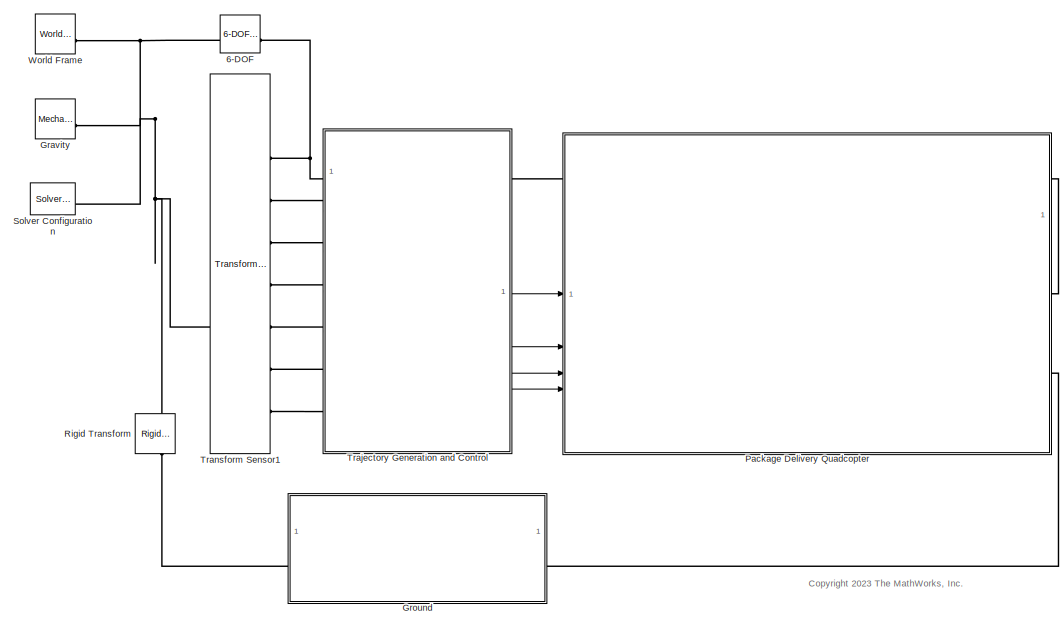
[diagram: root canvas - part 1/2, right side, full height]
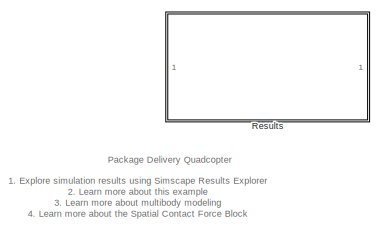
[diagram: root canvas - part 2/2, top left region]
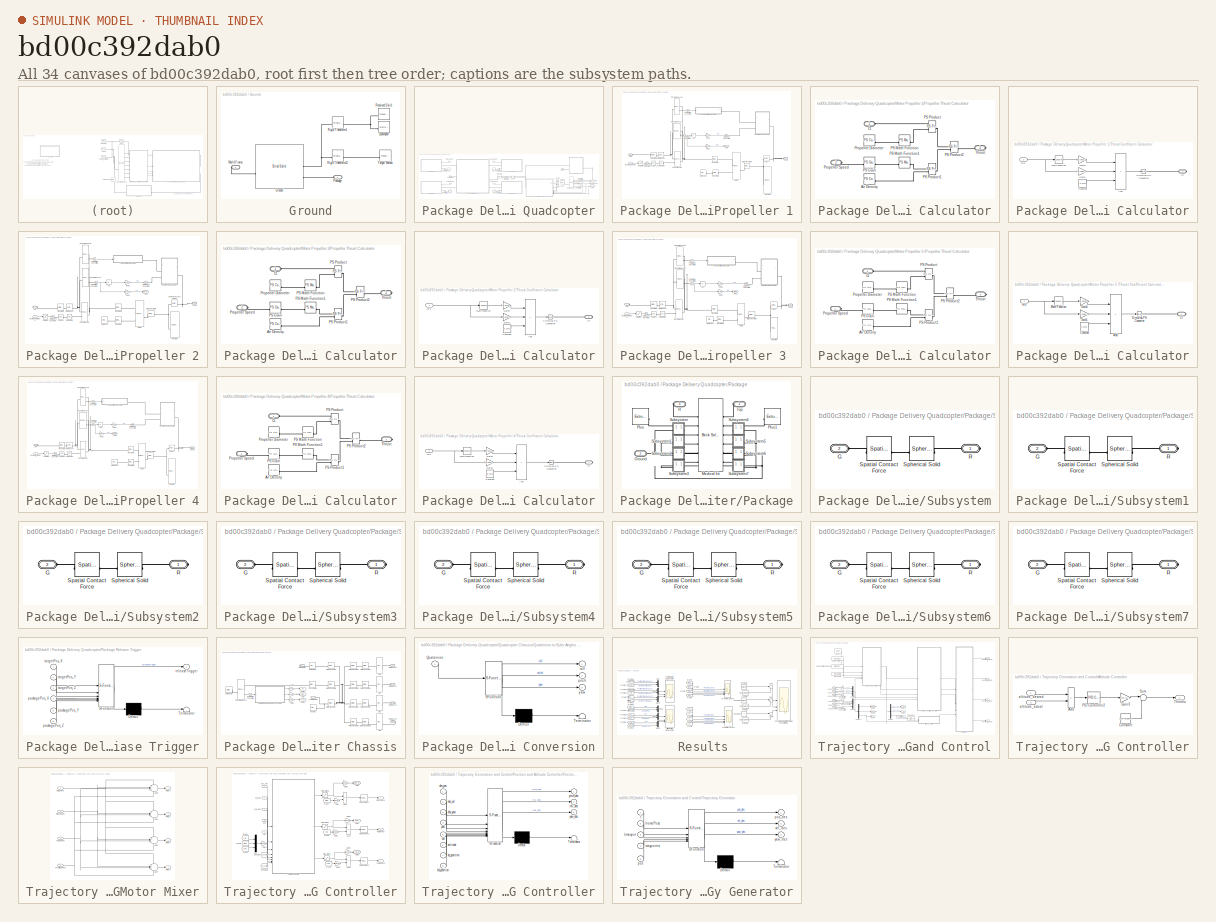
[diagram: thumbnail index - all 34 canvases of the model, root first then tree order]
MODEL slx_bd00c392dab0
KIND model
CONFIG AbsTol = 1e-4
CONFIG EnableMultiTasking = off
CONFIG FixedStep = auto
CONFIG MaxStep = 0.1
CONFIG MinStep = auto
CONFIG PreLoadFcn = addpath(fullfile('QuadcopterSupport','Geometries'));\naddpath(fullfile('QuadcopterSupport','Scripts'));
CONFIG RelTol = 1e-4
CONFIG SampleTimeConstraint = Unconstrained
CONFIG SolverName = FixedStepAuto
CONFIG StartTime = 0.0
CONFIG StopTime = inf
WORKSPACE source: MATLAB code (in-file)
WORKSPACE code: load('xy_data_membrane.mat');
BLOCK [Reference] 6-DOF  REF=sm_lib/Joints/6-DOF Joint
  SourceBlock = sm_lib/Joints/6-DOF Joint
  SourceType = 6-DOF Joint
BLOCK [Reference] Gravity  REF=sm_lib/Utilities/Mechanism
Configuration
  SourceBlock = sm_lib/Utilities/Mechanism\nConfiguration
  SourceType = Mechanism\nConfiguration
BLOCK [SubSystem] Ground
BLOCK [Reference] Ground/Ground  REF=sm_lib/Body Elements/Brick Solid
  NameLocation = top
  SourceBlock = sm_lib/Body Elements/Brick Solid
  SourceType = Brick Solid
BLOCK [Reference] Ground/Launchpad  REF=sm_lib/Body Elements/Extruded Solid
  SourceBlock = sm_lib/Body Elements/Extruded Solid
  SourceType = Extruded Solid
BLOCK [PMIOPort] Ground/Package
  Side = Left
BLOCK [Reference] Ground/Revolved Solid  REF=sm_lib/Body Elements/Revolved Solid
  SourceBlock = sm_lib/Body Elements/Revolved Solid
  SourceType = Revolved Solid
BLOCK [Reference] Ground/Rigid Transform1  REF=sm_lib/Frames and
Transforms/Rigid
Transform
  SourceBlock = sm_lib/Frames and\nTransforms/Rigid\nTransform
  SourceType = Rigid\nTransform
BLOCK [Reference] Ground/Rigid Transform12  REF=sm_lib/Frames and
Transforms/Rigid
Transform
  SourceBlock = sm_lib/Frames and\nTransforms/Rigid\nTransform
  SourceType = Rigid\nTransform
BLOCK [Reference] Ground/Target Marker  REF=sm_lib/Body Elements/Revolved Solid
  SourceBlock = sm_lib/Body Elements/Revolved Solid
  SourceType = Revolved Solid
BLOCK [PMIOPort] Ground/World Frame
  Port = 2
  Side = Right
BLOCK [SubSystem] Package Delivery Quadcopter
BLOCK [Constant] Package Delivery Quadcopter/Constant
  Value = targetX
BLOCK [Constant] Package Delivery Quadcopter/Constant1
  Value = targetY
BLOCK [Constant] Package Delivery Quadcopter/Constant3
  Value = targetZ
BLOCK [Inport] Package Delivery Quadcopter/Desired rpm Motor 1 
  Port = 2
BLOCK [Inport] Package Delivery Quadcopter/Desired rpm Motor 2
BLOCK [Inport] Package Delivery Quadcopter/Desired rpm Motor 3
  Port = 4
BLOCK [Inport] Package Delivery Quadcopter/Desired rpm Motor 4
  Port = 3
BLOCK [Goto] Package Delivery Quadcopter/Goto
  GotoTag = T2
  TagVisibility = global
BLOCK [Goto] Package Delivery Quadcopter/Goto1
  GotoTag = T4
  TagVisibility = global
BLOCK [Goto] Package Delivery Quadcopter/Goto2
  GotoTag = T1
  TagVisibility = global
BLOCK [Goto] Package Delivery Quadcopter/Goto3
  GotoTag = T3
  TagVisibility = global
BLOCK [Goto] Package Delivery Quadcopter/Goto4
  GotoTag = packagePoseX
  TagVisibility = global
BLOCK [Goto] Package Delivery Quadcopter/Goto5
  GotoTag = packagePoseY
  TagVisibility = global
BLOCK [Goto] Package Delivery Quadcopter/Goto6
  GotoTag = packagePoseZ
  TagVisibility = global
BLOCK [PMIOPort] Package Delivery Quadcopter/Ground
  Port = 2
  Side = Right
BLOCK [Memory] Package Delivery Quadcopter/Memory
BLOCK [SubSystem] Package Delivery Quadcopter/Motor Propeller 1
BLOCK [Abs] Package Delivery Quadcopter/Motor Propeller 1/Abs
  SaturateOnIntegerOverflow = off
BLOCK [PMIOPort] Package Delivery Quadcopter/Motor Propeller 1/Arm1
  Side = Left
BLOCK [Inport] Package Delivery Quadcopter/Motor Propeller 1/Desired rpm Motor 1
BLOCK [Gain] Package Delivery Quadcopter/Motor Propeller 1/Gain1
  Gain = 30/pi
BLOCK [Gain] Package Delivery Quadcopter/Motor Propeller 1/Gain2
  Gain = 30/pi
BLOCK [Goto] Package Delivery Quadcopter/Motor Propeller 1/Goto
  GotoTag = rpm1
  TagVisibility = global
BLOCK [Reference] Package Delivery Quadcopter/Motor Propeller 1/PS Gain1  REF=fl_lib/Physical Signals/Functions/PS Gain
  SourceBlock = fl_lib/Physical Signals/Functions/PS Gain
  SourceType = PS Gain
BLOCK [Reference] Package Delivery Quadcopter/Motor Propeller 1/PS Integrator  REF=fl_lib/Physical Signals/Linear Operators/PS Integrator
  SourceBlock = fl_lib/Physical Signals/Linear Operators/PS Integrator
  SourceType = PS Integrator
BLOCK [Reference] Package Delivery Quadcopter/Motor Propeller 1/PS-Simulink Converter1  REF=nesl_utility/PS-Simulink
Converter
  SourceBlock = nesl_utility/PS-Simulink\nConverter
  SourceType = PS-Simulink\nConverter
BLOCK [Reference] Package Delivery Quadcopter/Motor Propeller 1/PS-Simulink Converter2  REF=nesl_utility/PS-Simulink
Converter
  SourceBlock = nesl_utility/PS-Simulink\nConverter
  SourceType = PS-Simulink\nConverter
BLOCK [Reference] Package Delivery Quadcopter/Motor Propeller 1/Propeller 1  REF=sm_lib/Body Elements/File Solid
  SourceBlock = sm_lib/Body Elements/File Solid
  SourceType = File Solid
BLOCK [SubSystem] Package Delivery Quadcopter/Motor Propeller 1/Propeller Thrust Calculator
BLOCK [Reference] Package Delivery Quadcopter/Motor Propeller 1/Propeller Thrust Calculator/Air Density  REF=fl_lib/Physical Signals/Sources/PS Constant
  SourceBlock = fl_lib/Physical Signals/Sources/PS Constant
  SourceType = PS Constant
BLOCK [PMIOPort] Package Delivery Quadcopter/Motor Propeller 1/Propeller Thrust Calculator/Ct
  Side = Left
BLOCK [Reference] Package Delivery Quadcopter/Motor Propeller 1/Propeller Thrust Calculator/PS Gain  REF=fl_lib/Physical Signals/Functions/PS Gain
  SourceBlock = fl_lib/Physical Signals/Functions/PS Gain
  SourceType = PS Gain
BLOCK [Reference] Package Delivery Quadcopter/Motor Propeller 1/Propeller Thrust Calculator/PS Math Function  REF=fl_lib/Physical Signals/Functions/PS Math Function
  SourceBlock = fl_lib/Physical Signals/Functions/PS Math Function
  SourceType = PS Math Function
BLOCK [Reference] Package Delivery Quadcopter/Motor Propeller 1/Propeller Thrust Calculator/PS Math Function1  REF=fl_lib/Physical Signals/Functions/PS Math Function
  SourceBlock = fl_lib/Physical Signals/Functions/PS Math Function
  SourceType = PS Math Function
BLOCK [Reference] Package Delivery Quadcopter/Motor Propeller 1/Propeller Thrust Calculator/PS Product  REF=fl_lib/Physical Signals/Functions/PS Product
  SourceBlock = fl_lib/Physical Signals/Functions/PS Product
  SourceType = PS Product
BLOCK [Reference] Package Delivery Quadcopter/Motor Propeller 1/Propeller Thrust Calculator/PS Product1  REF=fl_lib/Physical Signals/Functions/PS Product
  SourceBlock = fl_lib/Physical Signals/Functions/PS Product
  SourceType = PS Product
BLOCK [Reference] Package Delivery Quadcopter/Motor Propeller 1/Propeller Thrust Calculator/PS Product2  REF=fl_lib/Physical Signals/Functions/PS Product
  SourceBlock = fl_lib/Physical Signals/Functions/PS Product
  SourceType = PS Product
BLOCK [Reference] Package Delivery Quadcopter/Motor Propeller 1/Propeller Thrust Calculator/Propeller Diameter  REF=fl_lib/Physical Signals/Sources/PS Constant
  SourceBlock = fl_lib/Physical Signals/Sources/PS Constant
  SourceType = PS Constant
BLOCK [PMIOPort] Package Delivery Quadcopter/Motor Propeller 1/Propeller Thrust Calculator/Propeller Speed
  Port = 2
  Side = Left
BLOCK [PMIOPort] Package Delivery Quadcopter/Motor Propeller 1/Propeller Thrust Calculator/Thrust
  Port = 3
  Side = Right
BLOCK [Reference] Package Delivery Quadcopter/Motor Propeller 1/Revolute Joint  REF=sm_lib/Joints/Revolute Joint
  SourceBlock = sm_lib/Joints/Revolute Joint
  SourceType = Revolute Joint
BLOCK [Reference] Package Delivery Quadcopter/Motor Propeller 1/Rigid Transform6  REF=sm_lib/Frames and
Transforms/Rigid
Transform
  SourceBlock = sm_lib/Frames and\nTransforms/Rigid\nTransform
  SourceType = Rigid\nTransform
BLOCK [Saturate] Package Delivery Quadcopter/Motor Propeller 1/Saturation
  LowerLimit = 0
  UpperLimit = 10000
BLOCK [Reference] Package Delivery Quadcopter/Motor Propeller 1/Simulink-PS Converter  REF=nesl_utility/Simulink-PS
Converter
  SourceBlock = nesl_utility/Simulink-PS\nConverter
  SourceType = Simulink-PS\nConverter
BLOCK [Reference] Package Delivery Quadcopter/Motor Propeller 1/Simulink-PS Converter1  REF=nesl_utility/Simulink-PS
Converter
  SourceBlock = nesl_utility/Simulink-PS\nConverter
  SourceType = Simulink-PS\nConverter
BLOCK [Reference] Package Delivery Quadcopter/Motor Propeller 1/Thrust  REF=sm_lib/Forces and
Torques/External Force
and Torque
  SourceBlock = sm_lib/Forces and\nTorques/External Force\nand Torque
  SourceType = External Force\nand Torque
BLOCK [SubSystem] Package Delivery Quadcopter/Motor Propeller 1/Thrust Coefficient Calculator
BLOCK [Sum] Package Delivery Quadcopter/Motor Propeller 1/Thrust Coefficient Calculator/Add
  IconShape = rectangular
  Inputs = +++
BLOCK [Constant] Package Delivery Quadcopter/Motor Propeller 1/Thrust Coefficient Calculator/Constant
  Value = 0.1072
BLOCK [PMIOPort] Package Delivery Quadcopter/Motor Propeller 1/Thrust Coefficient Calculator/Ct
  NameLocation = top
  Side = Right
BLOCK [Gain] Package Delivery Quadcopter/Motor Propeller 1/Thrust Coefficient Calculator/Gain1
  Gain = -0.008716
BLOCK [Gain] Package Delivery Quadcopter/Motor Propeller 1/Thrust Coefficient Calculator/Gain4
  Gain = -0.001589
BLOCK [Math] Package Delivery Quadcopter/Motor Propeller 1/Thrust Coefficient Calculator/Math Function
  Operator = square
BLOCK [Reference] Package Delivery Quadcopter/Motor Propeller 1/Thrust Coefficient Calculator/Simulink-PS Converter  REF=nesl_utility/Simulink-PS
Converter
  SourceBlock = nesl_utility/Simulink-PS\nConverter
  SourceType = Simulink-PS\nConverter
BLOCK [Inport] Package Delivery Quadcopter/Motor Propeller 1/Thrust Coefficient Calculator/m//s
BLOCK [PMIOPort] Package Delivery Quadcopter/Motor Propeller 1/Thrust1 
  Port = 2
  Side = Left
BLOCK [Reference] Package Delivery Quadcopter/Motor Propeller 1/Transform Sensor  REF=sm_lib/Frames and
Transforms/Transform
Sensor
  SourceBlock = sm_lib/Frames and\nTransforms/Transform\nSensor
  SourceType = Transform\nSensor
BLOCK [Reference] Package Delivery Quadcopter/Motor Propeller 1/Transform Sensor1  REF=sm_lib/Frames and
Transforms/Transform
Sensor
  SourceBlock = sm_lib/Frames and\nTransforms/Transform\nSensor
  SourceType = Transform\nSensor
BLOCK [Reference] Package Delivery Quadcopter/Motor Propeller 1/Transform1  REF=sm_lib/Frames and
Transforms/Rigid
Transform
  SourceBlock = sm_lib/Frames and\nTransforms/Rigid\nTransform
  SourceType = Rigid\nTransform
BLOCK [Reference] Package Delivery Quadcopter/Motor Propeller 1/Transform2  REF=sm_lib/Frames and
Transforms/Rigid
Transform
  SourceBlock = sm_lib/Frames and\nTransforms/Rigid\nTransform
  SourceType = Rigid\nTransform
BLOCK [Reference] Package Delivery Quadcopter/Motor Propeller 1/Transform4  REF=sm_lib/Frames and
Transforms/Rigid
Transform
  SourceBlock = sm_lib/Frames and\nTransforms/Rigid\nTransform
  SourceType = Rigid\nTransform
BLOCK [Reference] Package Delivery Quadcopter/Motor Propeller 1/motor 1  REF=sm_lib/Body Elements/File Solid
  SourceBlock = sm_lib/Body Elements/File Solid
  SourceType = File Solid
BLOCK [Reference] Package Delivery Quadcopter/Motor Propeller 1/motor base 1  REF=sm_lib/Body Elements/Cylindrical Solid
  SourceBlock = sm_lib/Body Elements/Cylindrical Solid
  SourceType = Cylindrical Solid
BLOCK [Reference] Package Delivery Quadcopter/Motor Propeller 1/motor cap 1  REF=sm_lib/Body Elements/File Solid
  SourceBlock = sm_lib/Body Elements/File Solid
  SourceType = File Solid
BLOCK [SubSystem] Package Delivery Quadcopter/Motor Propeller 2
BLOCK [Abs] Package Delivery Quadcopter/Motor Propeller 2/Abs
  SaturateOnIntegerOverflow = off
BLOCK [PMIOPort] Package Delivery Quadcopter/Motor Propeller 2/Arm2
  Side = Left
BLOCK [Inport] Package Delivery Quadcopter/Motor Propeller 2/Desired rpm Motor 2
BLOCK [Reference] Package Delivery Quadcopter/Motor Propeller 2/External Force and Torque  REF=sm_lib/Forces and
Torques/External Force
and Torque
  SourceBlock = sm_lib/Forces and\nTorques/External Force\nand Torque
  SourceType = External Force\nand Torque
BLOCK [Gain] Package Delivery Quadcopter/Motor Propeller 2/Gain1
  Gain = 30/pi
BLOCK [Gain] Package Delivery Quadcopter/Motor Propeller 2/Gain2
  Gain = 30/pi
BLOCK [Goto] Package Delivery Quadcopter/Motor Propeller 2/Goto
  GotoTag = rpm2
  TagVisibility = global
BLOCK [Reference] Package Delivery Quadcopter/Motor Propeller 2/PS Gain1  REF=fl_lib/Physical Signals/Functions/PS Gain
  SourceBlock = fl_lib/Physical Signals/Functions/PS Gain
  SourceType = PS Gain
BLOCK [Reference] Package Delivery Quadcopter/Motor Propeller 2/PS Integrator  REF=fl_lib/Physical Signals/Linear Operators/PS Integrator
  SourceBlock = fl_lib/Physical Signals/Linear Operators/PS Integrator
  SourceType = PS Integrator
BLOCK [Reference] Package Delivery Quadcopter/Motor Propeller 2/PS-Simulink Converter1  REF=nesl_utility/PS-Simulink
Converter
  SourceBlock = nesl_utility/PS-Simulink\nConverter
  SourceType = PS-Simulink\nConverter
BLOCK [Reference] Package Delivery Quadcopter/Motor Propeller 2/PS-Simulink Converter2  REF=nesl_utility/PS-Simulink
Converter
  SourceBlock = nesl_utility/PS-Simulink\nConverter
  SourceType = PS-Simulink\nConverter
BLOCK [Reference] Package Delivery Quadcopter/Motor Propeller 2/Propeller 2  REF=sm_lib/Body Elements/File Solid
  SourceBlock = sm_lib/Body Elements/File Solid
  SourceType = File Solid
BLOCK [SubSystem] Package Delivery Quadcopter/Motor Propeller 2/Propeller Thrust Calculator
BLOCK [Reference] Package Delivery Quadcopter/Motor Propeller 2/Propeller Thrust Calculator/Air Density  REF=fl_lib/Physical Signals/Sources/PS Constant
  SourceBlock = fl_lib/Physical Signals/Sources/PS Constant
  SourceType = PS Constant
BLOCK [PMIOPort] Package Delivery Quadcopter/Motor Propeller 2/Propeller Thrust Calculator/Ct
  Side = Left
BLOCK [Reference] Package Delivery Quadcopter/Motor Propeller 2/Propeller Thrust Calculator/PS Gain  REF=fl_lib/Physical Signals/Functions/PS Gain
  SourceBlock = fl_lib/Physical Signals/Functions/PS Gain
  SourceType = PS Gain
BLOCK [Reference] Package Delivery Quadcopter/Motor Propeller 2/Propeller Thrust Calculator/PS Math Function  REF=fl_lib/Physical Signals/Functions/PS Math Function
  SourceBlock = fl_lib/Physical Signals/Functions/PS Math Function
  SourceType = PS Math Function
BLOCK [Reference] Package Delivery Quadcopter/Motor Propeller 2/Propeller Thrust Calculator/PS Math Function1  REF=fl_lib/Physical Signals/Functions/PS Math Function
  SourceBlock = fl_lib/Physical Signals/Functions/PS Math Function
  SourceType = PS Math Function
BLOCK [Reference] Package Delivery Quadcopter/Motor Propeller 2/Propeller Thrust Calculator/PS Product  REF=fl_lib/Physical Signals/Functions/PS Product
  SourceBlock = fl_lib/Physical Signals/Functions/PS Product
  SourceType = PS Product
BLOCK [Reference] Package Delivery Quadcopter/Motor Propeller 2/Propeller Thrust Calculator/PS Product1  REF=fl_lib/Physical Signals/Functions/PS Product
  SourceBlock = fl_lib/Physical Signals/Functions/PS Product
  SourceType = PS Product
BLOCK [Reference] Package Delivery Quadcopter/Motor Propeller 2/Propeller Thrust Calculator/PS Product2  REF=fl_lib/Physical Signals/Functions/PS Product
  SourceBlock = fl_lib/Physical Signals/Functions/PS Product
  SourceType = PS Product
BLOCK [Reference] Package Delivery Quadcopter/Motor Propeller 2/Propeller Thrust Calculator/Propeller Diameter  REF=fl_lib/Physical Signals/Sources/PS Constant
  SourceBlock = fl_lib/Physical Signals/Sources/PS Constant
  SourceType = PS Constant
BLOCK [PMIOPort] Package Delivery Quadcopter/Motor Propeller 2/Propeller Thrust Calculator/Propeller Speed
  Port = 2
  Side = Left
BLOCK [PMIOPort] Package Delivery Quadcopter/Motor Propeller 2/Propeller Thrust Calculator/Thrust
  Port = 3
  Side = Right
BLOCK [Reference] Package Delivery Quadcopter/Motor Propeller 2/Revolute Joint  REF=sm_lib/Joints/Revolute Joint
  SourceBlock = sm_lib/Joints/Revolute Joint
  SourceType = Revolute Joint
BLOCK [Reference] Package Delivery Quadcopter/Motor Propeller 2/Rigid Transform6  REF=sm_lib/Frames and
Transforms/Rigid
Transform
  SourceBlock = sm_lib/Frames and\nTransforms/Rigid\nTransform
  SourceType = Rigid\nTransform
BLOCK [Saturate] Package Delivery Quadcopter/Motor Propeller 2/Saturation
  LowerLimit = 0
  UpperLimit = 10000
BLOCK [Reference] Package Delivery Quadcopter/Motor Propeller 2/Simulink-PS Converter  REF=nesl_utility/Simulink-PS
Converter
  SourceBlock = nesl_utility/Simulink-PS\nConverter
  SourceType = Simulink-PS\nConverter
BLOCK [Reference] Package Delivery Quadcopter/Motor Propeller 2/Simulink-PS Converter1  REF=nesl_utility/Simulink-PS
Converter
  SourceBlock = nesl_utility/Simulink-PS\nConverter
  SourceType = Simulink-PS\nConverter
BLOCK [SubSystem] Package Delivery Quadcopter/Motor Propeller 2/Thrust Coefficient Calculator
BLOCK [Sum] Package Delivery Quadcopter/Motor Propeller 2/Thrust Coefficient Calculator/Add
  IconShape = rectangular
  Inputs = +++
BLOCK [Constant] Package Delivery Quadcopter/Motor Propeller 2/Thrust Coefficient Calculator/Constant
  Value = 0.1072
BLOCK [PMIOPort] Package Delivery Quadcopter/Motor Propeller 2/Thrust Coefficient Calculator/Ct
  NameLocation = top
  Side = Right
BLOCK [Gain] Package Delivery Quadcopter/Motor Propeller 2/Thrust Coefficient Calculator/Gain1
  Gain = -0.008716
BLOCK [Gain] Package Delivery Quadcopter/Motor Propeller 2/Thrust Coefficient Calculator/Gain4
  Gain = -0.001589
BLOCK [Math] Package Delivery Quadcopter/Motor Propeller 2/Thrust Coefficient Calculator/Math Function
  Operator = square
BLOCK [Reference] Package Delivery Quadcopter/Motor Propeller 2/Thrust Coefficient Calculator/Simulink-PS Converter  REF=nesl_utility/Simulink-PS
Converter
  SourceBlock = nesl_utility/Simulink-PS\nConverter
  SourceType = Simulink-PS\nConverter
BLOCK [Inport] Package Delivery Quadcopter/Motor Propeller 2/Thrust Coefficient Calculator/m//s
BLOCK [PMIOPort] Package Delivery Quadcopter/Motor Propeller 2/Thrust2
  Port = 2
  Side = Left
BLOCK [Reference] Package Delivery Quadcopter/Motor Propeller 2/Transform Sensor  REF=sm_lib/Frames and
Transforms/Transform
Sensor
  SourceBlock = sm_lib/Frames and\nTransforms/Transform\nSensor
  SourceType = Transform\nSensor
BLOCK [Reference] Package Delivery Quadcopter/Motor Propeller 2/Transform Sensor1  REF=sm_lib/Frames and
Transforms/Transform
Sensor
  SourceBlock = sm_lib/Frames and\nTransforms/Transform\nSensor
  SourceType = Transform\nSensor
BLOCK [Reference] Package Delivery Quadcopter/Motor Propeller 2/Transform1  REF=sm_lib/Frames and
Transforms/Rigid
Transform
  SourceBlock = sm_lib/Frames and\nTransforms/Rigid\nTransform
  SourceType = Rigid\nTransform
BLOCK [Reference] Package Delivery Quadcopter/Motor Propeller 2/Transform2  REF=sm_lib/Frames and
Transforms/Rigid
Transform
  SourceBlock = sm_lib/Frames and\nTransforms/Rigid\nTransform
  SourceType = Rigid\nTransform
BLOCK [Reference] Package Delivery Quadcopter/Motor Propeller 2/Transform4  REF=sm_lib/Frames and
Transforms/Rigid
Transform
  SourceBlock = sm_lib/Frames and\nTransforms/Rigid\nTransform
  SourceType = Rigid\nTransform
BLOCK [Reference] Package Delivery Quadcopter/Motor Propeller 2/motor 2  REF=sm_lib/Body Elements/File Solid
  SourceBlock = sm_lib/Body Elements/File Solid
  SourceType = File Solid
BLOCK [Reference] Package Delivery Quadcopter/Motor Propeller 2/motor base 2  REF=sm_lib/Body Elements/Cylindrical Solid
  SourceBlock = sm_lib/Body Elements/Cylindrical Solid
  SourceType = Cylindrical Solid
BLOCK [Reference] Package Delivery Quadcopter/Motor Propeller 2/motor cap 2  REF=sm_lib/Body Elements/File Solid
  SourceBlock = sm_lib/Body Elements/File Solid
  SourceType = File Solid
BLOCK [SubSystem] Package Delivery Quadcopter/Motor Propeller 3 
BLOCK [Abs] Package Delivery Quadcopter/Motor Propeller 3 /Abs
  SaturateOnIntegerOverflow = off
BLOCK [PMIOPort] Package Delivery Quadcopter/Motor Propeller 3 /Arm3
  Side = Left
BLOCK [Inport] Package Delivery Quadcopter/Motor Propeller 3 /Desired rpm Motor 3
BLOCK [Gain] Package Delivery Quadcopter/Motor Propeller 3 /Gain1
  Gain = 30/pi
BLOCK [Gain] Package Delivery Quadcopter/Motor Propeller 3 /Gain2
  Gain = 30/pi
BLOCK [Goto] Package Delivery Quadcopter/Motor Propeller 3 /Goto1
  GotoTag = rpm3
  TagVisibility = global
BLOCK [Reference] Package Delivery Quadcopter/Motor Propeller 3 /PS Gain1  REF=fl_lib/Physical Signals/Functions/PS Gain
  SourceBlock = fl_lib/Physical Signals/Functions/PS Gain
  SourceType = PS Gain
BLOCK [Reference] Package Delivery Quadcopter/Motor Propeller 3 /PS Integrator  REF=fl_lib/Physical Signals/Linear Operators/PS Integrator
  SourceBlock = fl_lib/Physical Signals/Linear Operators/PS Integrator
  SourceType = PS Integrator
BLOCK [Reference] Package Delivery Quadcopter/Motor Propeller 3 /PS-Simulink Converter1  REF=nesl_utility/PS-Simulink
Converter
  SourceBlock = nesl_utility/PS-Simulink\nConverter
  SourceType = PS-Simulink\nConverter
BLOCK [Reference] Package Delivery Quadcopter/Motor Propeller 3 /PS-Simulink Converter2  REF=nesl_utility/PS-Simulink
Converter
  SourceBlock = nesl_utility/PS-Simulink\nConverter
  SourceType = PS-Simulink\nConverter
BLOCK [Reference] Package Delivery Quadcopter/Motor Propeller 3 /Propeller 3  REF=sm_lib/Body Elements/File Solid
  SourceBlock = sm_lib/Body Elements/File Solid
  SourceType = File Solid
BLOCK [SubSystem] Package Delivery Quadcopter/Motor Propeller 3 /Propeller Thrust Calculator
BLOCK [Reference] Package Delivery Quadcopter/Motor Propeller 3 /Propeller Thrust Calculator/Air Density  REF=fl_lib/Physical Signals/Sources/PS Constant
  SourceBlock = fl_lib/Physical Signals/Sources/PS Constant
  SourceType = PS Constant
BLOCK [PMIOPort] Package Delivery Quadcopter/Motor Propeller 3 /Propeller Thrust Calculator/Ct
  Side = Left
BLOCK [Reference] Package Delivery Quadcopter/Motor Propeller 3 /Propeller Thrust Calculator/PS Gain  REF=fl_lib/Physical Signals/Functions/PS Gain
  SourceBlock = fl_lib/Physical Signals/Functions/PS Gain
  SourceType = PS Gain
BLOCK [Reference] Package Delivery Quadcopter/Motor Propeller 3 /Propeller Thrust Calculator/PS Math Function  REF=fl_lib/Physical Signals/Functions/PS Math Function
  SourceBlock = fl_lib/Physical Signals/Functions/PS Math Function
  SourceType = PS Math Function
BLOCK [Reference] Package Delivery Quadcopter/Motor Propeller 3 /Propeller Thrust Calculator/PS Math Function1  REF=fl_lib/Physical Signals/Functions/PS Math Function
  SourceBlock = fl_lib/Physical Signals/Functions/PS Math Function
  SourceType = PS Math Function
BLOCK [Reference] Package Delivery Quadcopter/Motor Propeller 3 /Propeller Thrust Calculator/PS Product  REF=fl_lib/Physical Signals/Functions/PS Product
  SourceBlock = fl_lib/Physical Signals/Functions/PS Product
  SourceType = PS Product
BLOCK [Reference] Package Delivery Quadcopter/Motor Propeller 3 /Propeller Thrust Calculator/PS Product1  REF=fl_lib/Physical Signals/Functions/PS Product
  SourceBlock = fl_lib/Physical Signals/Functions/PS Product
  SourceType = PS Product
BLOCK [Reference] Package Delivery Quadcopter/Motor Propeller 3 /Propeller Thrust Calculator/PS Product2  REF=fl_lib/Physical Signals/Functions/PS Product
  SourceBlock = fl_lib/Physical Signals/Functions/PS Product
  SourceType = PS Product
BLOCK [Reference] Package Delivery Quadcopter/Motor Propeller 3 /Propeller Thrust Calculator/Propeller Diameter  REF=fl_lib/Physical Signals/Sources/PS Constant
  SourceBlock = fl_lib/Physical Signals/Sources/PS Constant
  SourceType = PS Constant
BLOCK [PMIOPort] Package Delivery Quadcopter/Motor Propeller 3 /Propeller Thrust Calculator/Propeller Speed
  Port = 2
  Side = Left
BLOCK [PMIOPort] Package Delivery Quadcopter/Motor Propeller 3 /Propeller Thrust Calculator/Thrust
  Port = 3
  Side = Right
BLOCK [Reference] Package Delivery Quadcopter/Motor Propeller 3 /Revolute Joint  REF=sm_lib/Joints/Revolute Joint
  SourceBlock = sm_lib/Joints/Revolute Joint
  SourceType = Revolute Joint
BLOCK [Reference] Package Delivery Quadcopter/Motor Propeller 3 /Rigid Transform6  REF=sm_lib/Frames and
Transforms/Rigid
Transform
  SourceBlock = sm_lib/Frames and\nTransforms/Rigid\nTransform
  SourceType = Rigid\nTransform
BLOCK [Saturate] Package Delivery Quadcopter/Motor Propeller 3 /Saturation
  LowerLimit = 0
  UpperLimit = 10000
BLOCK [Reference] Package Delivery Quadcopter/Motor Propeller 3 /Simulink-PS Converter  REF=nesl_utility/Simulink-PS
Converter
  SourceBlock = nesl_utility/Simulink-PS\nConverter
  SourceType = Simulink-PS\nConverter
BLOCK [Reference] Package Delivery Quadcopter/Motor Propeller 3 /Simulink-PS Converter1  REF=nesl_utility/Simulink-PS
Converter
  SourceBlock = nesl_utility/Simulink-PS\nConverter
  SourceType = Simulink-PS\nConverter
BLOCK [Reference] Package Delivery Quadcopter/Motor Propeller 3 /Thrust  REF=sm_lib/Forces and
Torques/External Force
and Torque
  SourceBlock = sm_lib/Forces and\nTorques/External Force\nand Torque
  SourceType = External Force\nand Torque
BLOCK [SubSystem] Package Delivery Quadcopter/Motor Propeller 3 /Thrust Coefficient Calculator
BLOCK [Sum] Package Delivery Quadcopter/Motor Propeller 3 /Thrust Coefficient Calculator/Add
  IconShape = rectangular
  Inputs = +++
BLOCK [Constant] Package Delivery Quadcopter/Motor Propeller 3 /Thrust Coefficient Calculator/Constant
  Value = 0.1072
BLOCK [PMIOPort] Package Delivery Quadcopter/Motor Propeller 3 /Thrust Coefficient Calculator/Ct
  NameLocation = top
  Side = Right
BLOCK [Gain] Package Delivery Quadcopter/Motor Propeller 3 /Thrust Coefficient Calculator/Gain1
  Gain = -0.008716
BLOCK [Gain] Package Delivery Quadcopter/Motor Propeller 3 /Thrust Coefficient Calculator/Gain4
  Gain = -0.001589
BLOCK [Math] Package Delivery Quadcopter/Motor Propeller 3 /Thrust Coefficient Calculator/Math Function
  Operator = square
BLOCK [Reference] Package Delivery Quadcopter/Motor Propeller 3 /Thrust Coefficient Calculator/Simulink-PS Converter  REF=nesl_utility/Simulink-PS
Converter
  SourceBlock = nesl_utility/Simulink-PS\nConverter
  SourceType = Simulink-PS\nConverter
BLOCK [Inport] Package Delivery Quadcopter/Motor Propeller 3 /Thrust Coefficient Calculator/m//s
BLOCK [PMIOPort] Package Delivery Quadcopter/Motor Propeller 3 /Thrust3
  Port = 2
  Side = Left
BLOCK [Reference] Package Delivery Quadcopter/Motor Propeller 3 /Transform Sensor  REF=sm_lib/Frames and
Transforms/Transform
Sensor
  SourceBlock = sm_lib/Frames and\nTransforms/Transform\nSensor
  SourceType = Transform\nSensor
BLOCK [Reference] Package Delivery Quadcopter/Motor Propeller 3 /Transform Sensor1  REF=sm_lib/Frames and
Transforms/Transform
Sensor
  SourceBlock = sm_lib/Frames and\nTransforms/Transform\nSensor
  SourceType = Transform\nSensor
BLOCK [Reference] Package Delivery Quadcopter/Motor Propeller 3 /Transform1  REF=sm_lib/Frames and
Transforms/Rigid
Transform
  SourceBlock = sm_lib/Frames and\nTransforms/Rigid\nTransform
  SourceType = Rigid\nTransform
BLOCK [Reference] Package Delivery Quadcopter/Motor Propeller 3 /Transform3  REF=sm_lib/Frames and
Transforms/Rigid
Transform
  SourceBlock = sm_lib/Frames and\nTransforms/Rigid\nTransform
  SourceType = Rigid\nTransform
BLOCK [Reference] Package Delivery Quadcopter/Motor Propeller 3 /Transform4  REF=sm_lib/Frames and
Transforms/Rigid
Transform
  SourceBlock = sm_lib/Frames and\nTransforms/Rigid\nTransform
  SourceType = Rigid\nTransform
BLOCK [Reference] Package Delivery Quadcopter/Motor Propeller 3 /motor 3  REF=sm_lib/Body Elements/File Solid
  SourceBlock = sm_lib/Body Elements/File Solid
  SourceType = File Solid
BLOCK [Reference] Package Delivery Quadcopter/Motor Propeller 3 /motor base 3  REF=sm_lib/Body Elements/Cylindrical Solid
  SourceBlock = sm_lib/Body Elements/Cylindrical Solid
  SourceType = Cylindrical Solid
BLOCK [Reference] Package Delivery Quadcopter/Motor Propeller 3 /motor cap 3  REF=sm_lib/Body Elements/File Solid
  SourceBlock = sm_lib/Body Elements/File Solid
  SourceType = File Solid
BLOCK [SubSystem] Package Delivery Quadcopter/Motor Propeller 4
BLOCK [Abs] Package Delivery Quadcopter/Motor Propeller 4/Abs
  SaturateOnIntegerOverflow = off
BLOCK [PMIOPort] Package Delivery Quadcopter/Motor Propeller 4/Arm4
  Side = Left
BLOCK [Inport] Package Delivery Quadcopter/Motor Propeller 4/Desired rpm Motor 4
BLOCK [Gain] Package Delivery Quadcopter/Motor Propeller 4/Gain1
  Gain = 30/pi
BLOCK [Gain] Package Delivery Quadcopter/Motor Propeller 4/Gain2
  Gain = 30/pi
BLOCK [Goto] Package Delivery Quadcopter/Motor Propeller 4/Goto1
  GotoTag = rpm4
  TagVisibility = global
BLOCK [Reference] Package Delivery Quadcopter/Motor Propeller 4/PS Gain1  REF=fl_lib/Physical Signals/Functions/PS Gain
  SourceBlock = fl_lib/Physical Signals/Functions/PS Gain
  SourceType = PS Gain
BLOCK [Reference] Package Delivery Quadcopter/Motor Propeller 4/PS Integrator  REF=fl_lib/Physical Signals/Linear Operators/PS Integrator
  SourceBlock = fl_lib/Physical Signals/Linear Operators/PS Integrator
  SourceType = PS Integrator
BLOCK [Reference] Package Delivery Quadcopter/Motor Propeller 4/PS-Simulink Converter1  REF=nesl_utility/PS-Simulink
Converter
  SourceBlock = nesl_utility/PS-Simulink\nConverter
  SourceType = PS-Simulink\nConverter
BLOCK [Reference] Package Delivery Quadcopter/Motor Propeller 4/PS-Simulink Converter2  REF=nesl_utility/PS-Simulink
Converter
  SourceBlock = nesl_utility/PS-Simulink\nConverter
  SourceType = PS-Simulink\nConverter
BLOCK [Reference] Package Delivery Quadcopter/Motor Propeller 4/Propeller 4   REF=sm_lib/Body Elements/File Solid
  SourceBlock = sm_lib/Body Elements/File Solid
  SourceType = File Solid
BLOCK [SubSystem] Package Delivery Quadcopter/Motor Propeller 4/Propeller Thrust Calculator
BLOCK [Reference] Package Delivery Quadcopter/Motor Propeller 4/Propeller Thrust Calculator/Air Density  REF=fl_lib/Physical Signals/Sources/PS Constant
  SourceBlock = fl_lib/Physical Signals/Sources/PS Constant
  SourceType = PS Constant
BLOCK [PMIOPort] Package Delivery Quadcopter/Motor Propeller 4/Propeller Thrust Calculator/Ct
  Side = Left
BLOCK [Reference] Package Delivery Quadcopter/Motor Propeller 4/Propeller Thrust Calculator/PS Gain  REF=fl_lib/Physical Signals/Functions/PS Gain
  SourceBlock = fl_lib/Physical Signals/Functions/PS Gain
  SourceType = PS Gain
BLOCK [Reference] Package Delivery Quadcopter/Motor Propeller 4/Propeller Thrust Calculator/PS Math Function  REF=fl_lib/Physical Signals/Functions/PS Math Function
  SourceBlock = fl_lib/Physical Signals/Functions/PS Math Function
  SourceType = PS Math Function
BLOCK [Reference] Package Delivery Quadcopter/Motor Propeller 4/Propeller Thrust Calculator/PS Math Function1  REF=fl_lib/Physical Signals/Functions/PS Math Function
  SourceBlock = fl_lib/Physical Signals/Functions/PS Math Function
  SourceType = PS Math Function
BLOCK [Reference] Package Delivery Quadcopter/Motor Propeller 4/Propeller Thrust Calculator/PS Product  REF=fl_lib/Physical Signals/Functions/PS Product
  SourceBlock = fl_lib/Physical Signals/Functions/PS Product
  SourceType = PS Product
BLOCK [Reference] Package Delivery Quadcopter/Motor Propeller 4/Propeller Thrust Calculator/PS Product1  REF=fl_lib/Physical Signals/Functions/PS Product
  SourceBlock = fl_lib/Physical Signals/Functions/PS Product
  SourceType = PS Product
BLOCK [Reference] Package Delivery Quadcopter/Motor Propeller 4/Propeller Thrust Calculator/PS Product2  REF=fl_lib/Physical Signals/Functions/PS Product
  SourceBlock = fl_lib/Physical Signals/Functions/PS Product
  SourceType = PS Product
BLOCK [Reference] Package Delivery Quadcopter/Motor Propeller 4/Propeller Thrust Calculator/Propeller Diameter  REF=fl_lib/Physical Signals/Sources/PS Constant
  SourceBlock = fl_lib/Physical Signals/Sources/PS Constant
  SourceType = PS Constant
BLOCK [PMIOPort] Package Delivery Quadcopter/Motor Propeller 4/Propeller Thrust Calculator/Propeller Speed
  Port = 2
  Side = Left
BLOCK [PMIOPort] Package Delivery Quadcopter/Motor Propeller 4/Propeller Thrust Calculator/Thrust
  Port = 3
  Side = Right
BLOCK [Reference] Package Delivery Quadcopter/Motor Propeller 4/Revolute Joint  REF=sm_lib/Joints/Revolute Joint
  SourceBlock = sm_lib/Joints/Revolute Joint
  SourceType = Revolute Joint
BLOCK [Reference] Package Delivery Quadcopter/Motor Propeller 4/Rigid Transform6  REF=sm_lib/Frames and
Transforms/Rigid
Transform
  SourceBlock = sm_lib/Frames and\nTransforms/Rigid\nTransform
  SourceType = Rigid\nTransform
BLOCK [Saturate] Package Delivery Quadcopter/Motor Propeller 4/Saturation
  LowerLimit = 0
  UpperLimit = 10000
BLOCK [Reference] Package Delivery Quadcopter/Motor Propeller 4/Simulink-PS Converter  REF=nesl_utility/Simulink-PS
Converter
  SourceBlock = nesl_utility/Simulink-PS\nConverter
  SourceType = Simulink-PS\nConverter
BLOCK [Reference] Package Delivery Quadcopter/Motor Propeller 4/Simulink-PS Converter1  REF=nesl_utility/Simulink-PS
Converter
  SourceBlock = nesl_utility/Simulink-PS\nConverter
  SourceType = Simulink-PS\nConverter
BLOCK [Reference] Package Delivery Quadcopter/Motor Propeller 4/Thrust  REF=sm_lib/Forces and
Torques/External Force
and Torque
  SourceBlock = sm_lib/Forces and\nTorques/External Force\nand Torque
  SourceType = External Force\nand Torque
BLOCK [SubSystem] Package Delivery Quadcopter/Motor Propeller 4/Thrust Coefficient Calculator
BLOCK [Sum] Package Delivery Quadcopter/Motor Propeller 4/Thrust Coefficient Calculator/Add
  IconShape = rectangular
  Inputs = +++
BLOCK [Constant] Package Delivery Quadcopter/Motor Propeller 4/Thrust Coefficient Calculator/Constant
  Value = 0.1072
BLOCK [PMIOPort] Package Delivery Quadcopter/Motor Propeller 4/Thrust Coefficient Calculator/Ct
  NameLocation = top
  Side = Right
BLOCK [Gain] Package Delivery Quadcopter/Motor Propeller 4/Thrust Coefficient Calculator/Gain1
  Gain = -0.008716
BLOCK [Gain] Package Delivery Quadcopter/Motor Propeller 4/Thrust Coefficient Calculator/Gain4
  Gain = -0.001589
BLOCK [Math] Package Delivery Quadcopter/Motor Propeller 4/Thrust Coefficient Calculator/Math Function
  Operator = square
BLOCK [Reference] Package Delivery Quadcopter/Motor Propeller 4/Thrust Coefficient Calculator/Simulink-PS Converter  REF=nesl_utility/Simulink-PS
Converter
  SourceBlock = nesl_utility/Simulink-PS\nConverter
  SourceType = Simulink-PS\nConverter
BLOCK [Inport] Package Delivery Quadcopter/Motor Propeller 4/Thrust Coefficient Calculator/m//s
BLOCK [PMIOPort] Package Delivery Quadcopter/Motor Propeller 4/Thrust4
  Port = 2
  Side = Left
BLOCK [Reference] Package Delivery Quadcopter/Motor Propeller 4/Transform Sensor  REF=sm_lib/Frames and
Transforms/Transform
Sensor
  SourceBlock = sm_lib/Frames and\nTransforms/Transform\nSensor
  SourceType = Transform\nSensor
BLOCK [Reference] Package Delivery Quadcopter/Motor Propeller 4/Transform Sensor1  REF=sm_lib/Frames and
Transforms/Transform
Sensor
  SourceBlock = sm_lib/Frames and\nTransforms/Transform\nSensor
  SourceType = Transform\nSensor
BLOCK [Reference] Package Delivery Quadcopter/Motor Propeller 4/Transform2  REF=sm_lib/Frames and
Transforms/Rigid
Transform
  SourceBlock = sm_lib/Frames and\nTransforms/Rigid\nTransform
  SourceType = Rigid\nTransform
BLOCK [Reference] Package Delivery Quadcopter/Motor Propeller 4/Transform3  REF=sm_lib/Frames and
Transforms/Rigid
Transform
  SourceBlock = sm_lib/Frames and\nTransforms/Rigid\nTransform
  SourceType = Rigid\nTransform
BLOCK [Reference] Package Delivery Quadcopter/Motor Propeller 4/Transform4  REF=sm_lib/Frames and
Transforms/Rigid
Transform
  SourceBlock = sm_lib/Frames and\nTransforms/Rigid\nTransform
  SourceType = Rigid\nTransform
BLOCK [Reference] Package Delivery Quadcopter/Motor Propeller 4/motor 4  REF=sm_lib/Body Elements/File Solid
  SourceBlock = sm_lib/Body Elements/File Solid
  SourceType = File Solid
BLOCK [Reference] Package Delivery Quadcopter/Motor Propeller 4/motor base 4  REF=sm_lib/Body Elements/Cylindrical Solid
  SourceBlock = sm_lib/Body Elements/Cylindrical Solid
  SourceType = Cylindrical Solid
BLOCK [Reference] Package Delivery Quadcopter/Motor Propeller 4/motor cap 4  REF=sm_lib/Body Elements/File Solid
  SourceBlock = sm_lib/Body Elements/File Solid
  SourceType = File Solid
BLOCK [Reference] Package Delivery Quadcopter/PS-Simulink Converter  REF=nesl_utility/PS-Simulink
Converter
  SourceBlock = nesl_utility/PS-Simulink\nConverter
  SourceType = PS-Simulink\nConverter
BLOCK [Reference] Package Delivery Quadcopter/PS-Simulink Converter1  REF=nesl_utility/PS-Simulink
Converter
  SourceBlock = nesl_utility/PS-Simulink\nConverter
  SourceType = PS-Simulink\nConverter
BLOCK [Reference] Package Delivery Quadcopter/PS-Simulink Converter2  REF=nesl_utility/PS-Simulink
Converter
  SourceBlock = nesl_utility/PS-Simulink\nConverter
  SourceType = PS-Simulink\nConverter
BLOCK [Reference] Package Delivery Quadcopter/PS-Simulink Converter3  REF=nesl_utility/PS-Simulink
Converter
  SourceBlock = nesl_utility/PS-Simulink\nConverter
  SourceType = PS-Simulink\nConverter
BLOCK [Reference] Package Delivery Quadcopter/PS-Simulink Converter4  REF=nesl_utility/PS-Simulink
Converter
  SourceBlock = nesl_utility/PS-Simulink\nConverter
  SourceType = PS-Simulink\nConverter
BLOCK [Reference] Package Delivery Quadcopter/PS-Simulink Converter5  REF=nesl_utility/PS-Simulink
Converter
  SourceBlock = nesl_utility/PS-Simulink\nConverter
  SourceType = PS-Simulink\nConverter
BLOCK [Reference] Package Delivery Quadcopter/PS-Simulink Converter6  REF=nesl_utility/PS-Simulink
Converter
  SourceBlock = nesl_utility/PS-Simulink\nConverter
  SourceType = PS-Simulink\nConverter
BLOCK [SubSystem] Package Delivery Quadcopter/Package
BLOCK [SubSystem] Package Delivery Quadcopter/Package Release Trigger
  ErrorFcn = Stateflow.Translate.translate
  PermitHierarchicalResolution = ExplicitOnly
  SFBlockType = MATLAB Function
  TreatAsAtomicUnit = on
BLOCK [Demux] Package Delivery Quadcopter/Package Release Trigger/ Demux 
  Outputs = 1
BLOCK [S-Function] Package Delivery Quadcopter/Package Release Trigger/ SFunction 
  EnableBusSupport = off
  FunctionName = sf_sfun
  PortCounts = [6 2]
  SFcnIsStateOwnerBlock = off
  SFunctionDeploymentMode = off
  Tag = Stateflow S-Function 6
BLOCK [Terminator] Package Delivery Quadcopter/Package Release Trigger/ Terminator 
BLOCK [Inport] Package Delivery Quadcopter/Package Release Trigger/packagePos_X
  Port = 4
BLOCK [Inport] Package Delivery Quadcopter/Package Release Trigger/packagePos_Y
  Port = 5
BLOCK [Inport] Package Delivery Quadcopter/Package Release Trigger/packagePos_Z
  Port = 6
BLOCK [Outport] Package Delivery Quadcopter/Package Release Trigger/releaseTrigger
BLOCK [Inport] Package Delivery Quadcopter/Package Release Trigger/targetPos_X
BLOCK [Inport] Package Delivery Quadcopter/Package Release Trigger/targetPos_Y
  Port = 2
BLOCK [Inport] Package Delivery Quadcopter/Package Release Trigger/targetPos_Z
  Port = 3
BLOCK [PMIOPort] Package Delivery Quadcopter/Package/Ground
  Port = 2
  Side = Left
BLOCK [Reference] Package Delivery Quadcopter/Package/Medical kit  REF=sm_lib/Body Elements/Brick Solid
  NameLocation = top
  SourceBlock = sm_lib/Body Elements/Brick Solid
  SourceType = Brick Solid
BLOCK [Reference] Package Delivery Quadcopter/Package/Plus  REF=sm_lib/Body Elements/Extruded Solid
  SourceBlock = sm_lib/Body Elements/Extruded Solid
  SourceType = Extruded Solid
BLOCK [Reference] Package Delivery Quadcopter/Package/Plus1  REF=sm_lib/Body Elements/Extruded Solid
  SourceBlock = sm_lib/Body Elements/Extruded Solid
  SourceType = Extruded Solid
BLOCK [PMIOPort] Package Delivery Quadcopter/Package/R
  Port = 3
  Side = Right
BLOCK [SubSystem] Package Delivery Quadcopter/Package/Subsystem
BLOCK [PMIOPort] Package Delivery Quadcopter/Package/Subsystem/G
  Port = 2
  Side = Left
BLOCK [PMIOPort] Package Delivery Quadcopter/Package/Subsystem/R
  Side = Right
BLOCK [Reference] Package Delivery Quadcopter/Package/Subsystem/Spatial Contact Force  REF=sm_lib/Forces and
Torques/Spatial
Contact Force
  NameLocation = top
  SourceBlock = sm_lib/Forces and\nTorques/Spatial\nContact Force
  SourceType = Spatial\nContact Force
BLOCK [Reference] Package Delivery Quadcopter/Package/Subsystem/Spherical Solid  REF=sm_lib/Body Elements/Spherical Solid
  SourceBlock = sm_lib/Body Elements/Spherical Solid
  SourceType = Spherical Solid
BLOCK [SubSystem] Package Delivery Quadcopter/Package/Subsystem1
BLOCK [PMIOPort] Package Delivery Quadcopter/Package/Subsystem1/G
  Port = 2
  Side = Left
BLOCK [PMIOPort] Package Delivery Quadcopter/Package/Subsystem1/R
  Side = Right
BLOCK [Reference] Package Delivery Quadcopter/Package/Subsystem1/Spatial Contact Force  REF=sm_lib/Forces and
Torques/Spatial
Contact Force
  NameLocation = top
  SourceBlock = sm_lib/Forces and\nTorques/Spatial\nContact Force
  SourceType = Spatial\nContact Force
BLOCK [Reference] Package Delivery Quadcopter/Package/Subsystem1/Spherical Solid  REF=sm_lib/Body Elements/Spherical Solid
  SourceBlock = sm_lib/Body Elements/Spherical Solid
  SourceType = Spherical Solid
BLOCK [SubSystem] Package Delivery Quadcopter/Package/Subsystem2
BLOCK [PMIOPort] Package Delivery Quadcopter/Package/Subsystem2/G
  Port = 2
  Side = Left
BLOCK [PMIOPort] Package Delivery Quadcopter/Package/Subsystem2/R
  Side = Right
BLOCK [Reference] Package Delivery Quadcopter/Package/Subsystem2/Spatial Contact Force  REF=sm_lib/Forces and
Torques/Spatial
Contact Force
  NameLocation = top
  SourceBlock = sm_lib/Forces and\nTorques/Spatial\nContact Force
  SourceType = Spatial\nContact Force
BLOCK [Reference] Package Delivery Quadcopter/Package/Subsystem2/Spherical Solid  REF=sm_lib/Body Elements/Spherical Solid
  SourceBlock = sm_lib/Body Elements/Spherical Solid
  SourceType = Spherical Solid
BLOCK [SubSystem] Package Delivery Quadcopter/Package/Subsystem3
BLOCK [PMIOPort] Package Delivery Quadcopter/Package/Subsystem3/G
  Port = 2
  Side = Left
BLOCK [PMIOPort] Package Delivery Quadcopter/Package/Subsystem3/R
  Side = Right
BLOCK [Reference] Package Delivery Quadcopter/Package/Subsystem3/Spatial Contact Force  REF=sm_lib/Forces and
Torques/Spatial
Contact Force
  NameLocation = top
  SourceBlock = sm_lib/Forces and\nTorques/Spatial\nContact Force
  SourceType = Spatial\nContact Force
BLOCK [Reference] Package Delivery Quadcopter/Package/Subsystem3/Spherical Solid  REF=sm_lib/Body Elements/Spherical Solid
  SourceBlock = sm_lib/Body Elements/Spherical Solid
  SourceType = Spherical Solid
BLOCK [SubSystem] Package Delivery Quadcopter/Package/Subsystem4
BLOCK [PMIOPort] Package Delivery Quadcopter/Package/Subsystem4/G
  Port = 2
  Side = Left
BLOCK [PMIOPort] Package Delivery Quadcopter/Package/Subsystem4/R
  Side = Right
BLOCK [Reference] Package Delivery Quadcopter/Package/Subsystem4/Spatial Contact Force  REF=sm_lib/Forces and
Torques/Spatial
Contact Force
  NameLocation = top
  SourceBlock = sm_lib/Forces and\nTorques/Spatial\nContact Force
  SourceType = Spatial\nContact Force
BLOCK [Reference] Package Delivery Quadcopter/Package/Subsystem4/Spherical Solid  REF=sm_lib/Body Elements/Spherical Solid
  SourceBlock = sm_lib/Body Elements/Spherical Solid
  SourceType = Spherical Solid
BLOCK [SubSystem] Package Delivery Quadcopter/Package/Subsystem5
BLOCK [PMIOPort] Package Delivery Quadcopter/Package/Subsystem5/G
  Port = 2
  Side = Left
BLOCK [PMIOPort] Package Delivery Quadcopter/Package/Subsystem5/R
  Side = Right
BLOCK [Reference] Package Delivery Quadcopter/Package/Subsystem5/Spatial Contact Force  REF=sm_lib/Forces and
Torques/Spatial
Contact Force
  NameLocation = top
  SourceBlock = sm_lib/Forces and\nTorques/Spatial\nContact Force
  SourceType = Spatial\nContact Force
BLOCK [Reference] Package Delivery Quadcopter/Package/Subsystem5/Spherical Solid  REF=sm_lib/Body Elements/Spherical Solid
  SourceBlock = sm_lib/Body Elements/Spherical Solid
  SourceType = Spherical Solid
BLOCK [SubSystem] Package Delivery Quadcopter/Package/Subsystem6
BLOCK [PMIOPort] Package Delivery Quadcopter/Package/Subsystem6/G
  Port = 2
  Side = Left
BLOCK [PMIOPort] Package Delivery Quadcopter/Package/Subsystem6/R
  Side = Right
BLOCK [Reference] Package Delivery Quadcopter/Package/Subsystem6/Spatial Contact Force  REF=sm_lib/Forces and
Torques/Spatial
Contact Force
  NameLocation = top
  SourceBlock = sm_lib/Forces and\nTorques/Spatial\nContact Force
  SourceType = Spatial\nContact Force
BLOCK [Reference] Package Delivery Quadcopter/Package/Subsystem6/Spherical Solid  REF=sm_lib/Body Elements/Spherical Solid
  SourceBlock = sm_lib/Body Elements/Spherical Solid
  SourceType = Spherical Solid
BLOCK [SubSystem] Package Delivery Quadcopter/Package/Subsystem7
BLOCK [PMIOPort] Package Delivery Quadcopter/Package/Subsystem7/G
  Port = 2
  Side = Left
BLOCK [PMIOPort] Package Delivery Quadcopter/Package/Subsystem7/R
  Side = Right
BLOCK [Reference] Package Delivery Quadcopter/Package/Subsystem7/Spatial Contact Force  REF=sm_lib/Forces and
Torques/Spatial
Contact Force
  NameLocation = top
  SourceBlock = sm_lib/Forces and\nTorques/Spatial\nContact Force
  SourceType = Spatial\nContact Force
BLOCK [Reference] Package Delivery Quadcopter/Package/Subsystem7/Spherical Solid  REF=sm_lib/Body Elements/Spherical Solid
  SourceBlock = sm_lib/Body Elements/Spherical Solid
  SourceType = Spherical Solid
BLOCK [PMIOPort] Package Delivery Quadcopter/Package/Top
  Side = Left
BLOCK [SubSystem] Package Delivery Quadcopter/Quadcopter Chassis
BLOCK [Reference] Package Delivery Quadcopter/Quadcopter Chassis/ Arm2   REF=sm_lib/Body Elements/File Solid
  SourceBlock = sm_lib/Body Elements/File Solid
  SourceType = File Solid
BLOCK [Reference] Package Delivery Quadcopter/Quadcopter Chassis/ Arm4  REF=sm_lib/Body Elements/File Solid
  SourceBlock = sm_lib/Body Elements/File Solid
  SourceType = File Solid
BLOCK [Reference] Package Delivery Quadcopter/Quadcopter Chassis/Arm1  REF=sm_lib/Body Elements/File Solid
  SourceBlock = sm_lib/Body Elements/File Solid
  SourceType = File Solid
BLOCK [Reference] Package Delivery Quadcopter/Quadcopter Chassis/Arm3  REF=sm_lib/Body Elements/File Solid
  SourceBlock = sm_lib/Body Elements/File Solid
  SourceType = File Solid
BLOCK [PMIOPort] Package Delivery Quadcopter/Quadcopter Chassis/Bottom Plate
  Port = 5
  Side = Right
BLOCK [Gain] Package Delivery Quadcopter/Quadcopter Chassis/Gain
  Gain = 180/pi
BLOCK [Gain] Package Delivery Quadcopter/Quadcopter Chassis/Gain1
  Gain = 180/pi
BLOCK [Gain] Package Delivery Quadcopter/Quadcopter Chassis/Gain2
  Gain = 180/pi
BLOCK [Goto] Package Delivery Quadcopter/Quadcopter Chassis/Goto
  GotoTag = pitch
  NameLocation = top
  TagVisibility = global
BLOCK [Goto] Package Delivery Quadcopter/Quadcopter Chassis/Goto1
  GotoTag = roll
  TagVisibility = global
BLOCK [Goto] Package Delivery Quadcopter/Quadcopter Chassis/Goto2
  GotoTag = yaw
  NameLocation = top
  TagVisibility = global
BLOCK [Reference] Package Delivery Quadcopter/Quadcopter Chassis/PS-Simulink Converter1  REF=nesl_utility/PS-Simulink
Converter
  SourceBlock = nesl_utility/PS-Simulink\nConverter
  SourceType = PS-Simulink\nConverter
BLOCK [SubSystem] Package Delivery Quadcopter/Quadcopter Chassis/Quaternion to Euler Angles Conversion
  ErrorFcn = Stateflow.Translate.translate
  PermitHierarchicalResolution = ExplicitOnly
  SFBlockType = MATLAB Function
  TreatAsAtomicUnit = on
BLOCK [Demux] Package Delivery Quadcopter/Quadcopter Chassis/Quaternion to Euler Angles Conversion/ Demux 
  Outputs = 1
BLOCK [S-Function] Package Delivery Quadcopter/Quadcopter Chassis/Quaternion to Euler Angles Conversion/ SFunction 
  EnableBusSupport = off
  FunctionName = sf_sfun
  PortCounts = [1 4]
  SFcnIsStateOwnerBlock = off
  SFunctionDeploymentMode = off
  Tag = Stateflow S-Function 3
BLOCK [Terminator] Package Delivery Quadcopter/Quadcopter Chassis/Quaternion to Euler Angles Conversion/ Terminator 
BLOCK [Inport] Package Delivery Quadcopter/Quadcopter Chassis/Quaternion to Euler Angles Conversion/Quaternion
BLOCK [Outport] Package Delivery Quadcopter/Quadcopter Chassis/Quaternion to Euler Angles Conversion/pitch
  Port = 2
BLOCK [Outport] Package Delivery Quadcopter/Quadcopter Chassis/Quaternion to Euler Angles Conversion/roll
BLOCK [Outport] Package Delivery Quadcopter/Quadcopter Chassis/Quaternion to Euler Angles Conversion/yaw
  Port = 3
BLOCK [Reference] Package Delivery Quadcopter/Quadcopter Chassis/Rigid Transform  REF=sm_lib/Frames and
Transforms/Rigid
Transform
  NameLocation = top
  SourceBlock = sm_lib/Frames and\nTransforms/Rigid\nTransform
  SourceType = Rigid\nTransform
BLOCK [Reference] Package Delivery Quadcopter/Quadcopter Chassis/Rigid Transform1  REF=sm_lib/Frames and
Transforms/Rigid
Transform
  SourceBlock = sm_lib/Frames and\nTransforms/Rigid\nTransform
  SourceType = Rigid\nTransform
BLOCK [Reference] Package Delivery Quadcopter/Quadcopter Chassis/Rigid Transform10  REF=sm_lib/Frames and
Transforms/Rigid
Transform
  SourceBlock = sm_lib/Frames and\nTransforms/Rigid\nTransform
  SourceType = Rigid\nTransform
BLOCK [Reference] Package Delivery Quadcopter/Quadcopter Chassis/Rigid Transform2  REF=sm_lib/Frames and
Transforms/Rigid
Transform
  SourceBlock = sm_lib/Frames and\nTransforms/Rigid\nTransform
  SourceType = Rigid\nTransform
BLOCK [Reference] Package Delivery Quadcopter/Quadcopter Chassis/Rigid Transform3  REF=sm_lib/Frames and
Transforms/Rigid
Transform
  SourceBlock = sm_lib/Frames and\nTransforms/Rigid\nTransform
  SourceType = Rigid\nTransform
BLOCK [Reference] Package Delivery Quadcopter/Quadcopter Chassis/Rigid Transform4  REF=sm_lib/Frames and
Transforms/Rigid
Transform
  SourceBlock = sm_lib/Frames and\nTransforms/Rigid\nTransform
  SourceType = Rigid\nTransform
BLOCK [Reference] Package Delivery Quadcopter/Quadcopter Chassis/Rigid Transform5  REF=sm_lib/Frames and
Transforms/Rigid
Transform
  NameLocation = top
  SourceBlock = sm_lib/Frames and\nTransforms/Rigid\nTransform
  SourceType = Rigid\nTransform
BLOCK [Reference] Package Delivery Quadcopter/Quadcopter Chassis/Rigid Transform6  REF=sm_lib/Frames and
Transforms/Rigid
Transform
  SourceBlock = sm_lib/Frames and\nTransforms/Rigid\nTransform
  SourceType = Rigid\nTransform
BLOCK [Reference] Package Delivery Quadcopter/Quadcopter Chassis/Rigid Transform7  REF=sm_lib/Frames and
Transforms/Rigid
Transform
  NameLocation = top
  SourceBlock = sm_lib/Frames and\nTransforms/Rigid\nTransform
  SourceType = Rigid\nTransform
BLOCK [Reference] Package Delivery Quadcopter/Quadcopter Chassis/Rigid Transform8  REF=sm_lib/Frames and
Transforms/Rigid
Transform
  SourceBlock = sm_lib/Frames and\nTransforms/Rigid\nTransform
  SourceType = Rigid\nTransform
BLOCK [Reference] Package Delivery Quadcopter/Quadcopter Chassis/Rigid Transform9  REF=sm_lib/Frames and
Transforms/Rigid
Transform
  SourceBlock = sm_lib/Frames and\nTransforms/Rigid\nTransform
  SourceType = Rigid\nTransform
BLOCK [Reference] Package Delivery Quadcopter/Quadcopter Chassis/Sensor Suite  REF=sm_lib/Body Elements/Brick Solid
  SourceBlock = sm_lib/Body Elements/Brick Solid
  SourceType = Brick Solid
BLOCK [PMIOPort] Package Delivery Quadcopter/Quadcopter Chassis/To World Frame
  Port = 2
  Side = Left
BLOCK [Reference] Package Delivery Quadcopter/Quadcopter Chassis/Transform Sensor  REF=sm_lib/Frames and
Transforms/Transform
Sensor
  SourceBlock = sm_lib/Frames and\nTransforms/Transform\nSensor
  SourceType = Transform\nSensor
BLOCK [Reference] Package Delivery Quadcopter/Quadcopter Chassis/World Frame  REF=sm_lib/Frames and
Transforms/World Frame
  SourceBlock = sm_lib/Frames and\nTransforms/World Frame
  SourceType = World Frame
BLOCK [Reference] Package Delivery Quadcopter/Quadcopter Chassis/bottom plate  REF=sm_lib/Body Elements/File Solid
  SourceBlock = sm_lib/Body Elements/File Solid
  SourceType = File Solid
BLOCK [PMIOPort] Package Delivery Quadcopter/Quadcopter Chassis/motor base 1 
  Port = 3
  Side = Right
BLOCK [PMIOPort] Package Delivery Quadcopter/Quadcopter Chassis/motor base 2
  Side = Left
BLOCK [PMIOPort] Package Delivery Quadcopter/Quadcopter Chassis/motor base 3
  Port = 6
  Side = Right
BLOCK [PMIOPort] Package Delivery Quadcopter/Quadcopter Chassis/motor base 4
  Port = 4
  Side = Left
BLOCK [Reference] Package Delivery Quadcopter/Quadcopter Chassis/top plate   REF=sm_lib/Body Elements/File Solid
  SourceBlock = sm_lib/Body Elements/File Solid
  SourceType = File Solid
BLOCK [Reference] Package Delivery Quadcopter/Simulink-PS Converter  REF=nesl_utility/Simulink-PS
Converter
  SourceBlock = nesl_utility/Simulink-PS\nConverter
  SourceType = Simulink-PS\nConverter
BLOCK [PMIOPort] Package Delivery Quadcopter/To World Frame
  Side = Right
BLOCK [Reference] Package Delivery Quadcopter/Transform Sensor1  REF=sm_lib/Frames and
Transforms/Transform
Sensor
  SourceBlock = sm_lib/Frames and\nTransforms/Transform\nSensor
  SourceType = Transform\nSensor
BLOCK [Reference] Package Delivery Quadcopter/Weld Joint5  REF=sm_lib/Joints/Weld Joint
  SourceBlock = sm_lib/Joints/Weld Joint
  SourceType = Weld Joint
BLOCK [Reference] Package Delivery Quadcopter/World Frame  REF=sm_lib/Frames and
Transforms/World Frame
  SourceBlock = sm_lib/Frames and\nTransforms/World Frame
  SourceType = World Frame
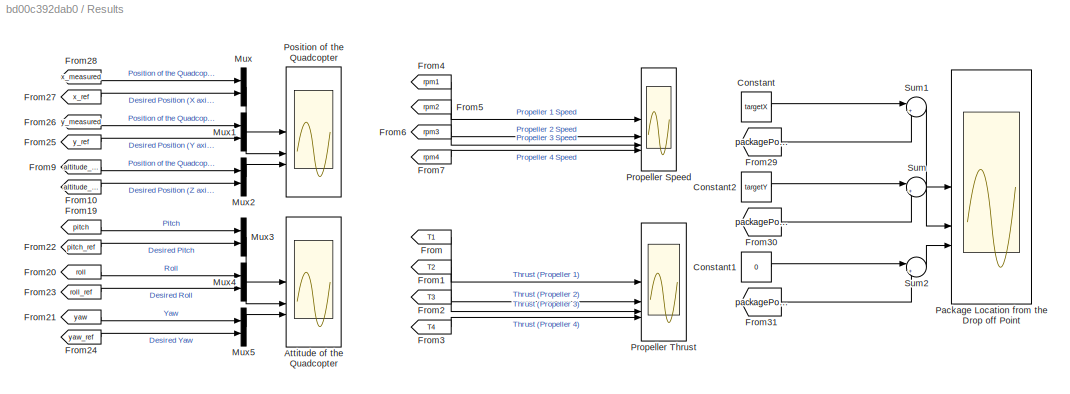
BLOCK [SubSystem] Results 
BLOCK [Scope] Results /Attitude of the Quadcopter
  Floating = off
  NumInputPorts = 3
  ScopeSpecificationString = Simulink.scopes.TimeScopeBlockCfg('CurrentConfiguration', extmgr.ConfigurationSet(extmgr.Configuration('Core','General UI',true),extmgr.Configuration('Core','Source UI',true),extmgr.Configuration('Sources','WiredSimulink',true,'DataLoggingVariableName','ScopeData2'),extmgr.Configuration('Visuals','Time Domain',true,'SerializedDisplays',{struct('MinYLimReal','-10.9046','MaxYLimReal','11.26386','YLa...<+2750ch>
BLOCK [Constant] Results /Constant
  Value = targetX
BLOCK [Constant] Results /Constant1
  Value = 0
BLOCK [Constant] Results /Constant2
  Value = targetY
BLOCK [From] Results /From
  GotoTag = T1
  TagVisibility = global
BLOCK [From] Results /From1
  GotoTag = T2
  TagVisibility = global
BLOCK [From] Results /From10
  GotoTag = altitude_ref
  TagVisibility = global
BLOCK [From] Results /From19
  GotoTag = pitch
  TagVisibility = global
BLOCK [From] Results /From2
  GotoTag = T3
  TagVisibility = global
BLOCK [From] Results /From20
  GotoTag = roll
  TagVisibility = global
BLOCK [From] Results /From21
  GotoTag = yaw
  TagVisibility = global
BLOCK [From] Results /From22
  GotoTag = pitch_ref
  TagVisibility = global
BLOCK [From] Results /From23
  GotoTag = roll_ref
  TagVisibility = global
BLOCK [From] Results /From24
  GotoTag = yaw_ref
  TagVisibility = global
BLOCK [From] Results /From25
  GotoTag = y_ref
  TagVisibility = global
BLOCK [From] Results /From26
  GotoTag = y_measured
  TagVisibility = global
BLOCK [From] Results /From27
  GotoTag = x_ref
  TagVisibility = global
BLOCK [From] Results /From28
  GotoTag = x_measured
  TagVisibility = global
BLOCK [From] Results /From29
  GotoTag = packagePoseX
  TagVisibility = global
BLOCK [From] Results /From3
  GotoTag = T4
  TagVisibility = global
BLOCK [From] Results /From30
  GotoTag = packagePoseY
  TagVisibility = global
BLOCK [From] Results /From31
  GotoTag = packagePoseZ
  TagVisibility = global
BLOCK [From] Results /From4
  GotoTag = rpm1
  TagVisibility = global
BLOCK [From] Results /From5
  GotoTag = rpm2
  TagVisibility = global
BLOCK [From] Results /From6
  GotoTag = rpm3
  TagVisibility = global
BLOCK [From] Results /From7
  GotoTag = rpm4
  TagVisibility = global
BLOCK [From] Results /From9
  GotoTag = altitude_measured
  TagVisibility = global
BLOCK [Mux] Results /Mux
  DisplayOption = bar
  Inputs = 2
BLOCK [Mux] Results /Mux1
  DisplayOption = bar
  Inputs = 2
BLOCK [Mux] Results /Mux2
  DisplayOption = bar
  Inputs = 2
BLOCK [Mux] Results /Mux3
  DisplayOption = bar
  Inputs = 2
BLOCK [Mux] Results /Mux4
  DisplayOption = bar
  Inputs = 2
BLOCK [Mux] Results /Mux5
  DisplayOption = bar
  Inputs = 2
BLOCK [Scope] Results /Package Location from the Drop off Point
  Floating = off
  NumInputPorts = 3
  ScopeSpecificationString = Simulink.scopes.TimeScopeBlockCfg('CurrentConfiguration', extmgr.ConfigurationSet(extmgr.Configuration('Core','General UI',true),extmgr.Configuration('Core','Source UI',true),extmgr.Configuration('Sources','WiredSimulink',true,'DataLoggingVariableName','ScopeData1'),extmgr.Configuration('Visuals','Time Domain',true,'SerializedDisplays',{struct('MinYLimReal','-1.36863','MaxYLimReal','11.26785','YLa...<+2862ch>
BLOCK [Scope] Results /Position of the Quadcopter
  Floating = off
  NumInputPorts = 3
  ScopeSpecificationString = Simulink.scopes.TimeScopeBlockCfg('CurrentConfiguration', extmgr.ConfigurationSet(extmgr.Configuration('Core','General UI',true),extmgr.Configuration('Core','Source UI',true),extmgr.Configuration('Sources','WiredSimulink',true,'DataLoggingVariableName','ScopeData1'),extmgr.Configuration('Visuals','Time Domain',true,'SerializedDisplays',{struct('MinYLimReal','-6.37689','MaxYLimReal','6.96012','YLab...<+2869ch>
BLOCK [Scope] Results /Propeller Speed
  Floating = off
  NumInputPorts = 4
  ScopeSpecificationString = Simulink.scopes.TimeScopeBlockCfg('CurrentConfiguration', extmgr.ConfigurationSet(extmgr.Configuration('Core','General UI',true),extmgr.Configuration('Core','Source UI',true),extmgr.Configuration('Sources','WiredSimulink',true,'DataLoggingVariableName','ScopeData1'),extmgr.Configuration('Visuals','Time Domain',true,'SerializedDisplays',{struct('MinYLimReal','-5141.65144','MaxYLimReal','5140.4032',...<+1543ch>
BLOCK [Scope] Results /Propeller Thrust
  Floating = off
  NumInputPorts = 4
  ScopeSpecificationString = Simulink.scopes.TimeScopeBlockCfg('CurrentConfiguration', extmgr.ConfigurationSet(extmgr.Configuration('Core','General UI',true),extmgr.Configuration('Core','Source UI',true),extmgr.Configuration('Sources','WiredSimulink',true,'DataLoggingVariableName','ScopeData3'),extmgr.Configuration('Visuals','Time Domain',true,'SerializedDisplays',{struct('MinYLimReal','-0.42131','MaxYLimReal','3.79179','YLab...<+1608ch>
BLOCK [Sum] Results /Sum
  Inputs = |+-
BLOCK [Sum] Results /Sum1
  Inputs = |+-
BLOCK [Sum] Results /Sum2
  Inputs = |+-
BLOCK [Reference] Rigid Transform  REF=sm_lib/Frames and
Transforms/Rigid
Transform
  NameLocation = left
  SourceBlock = sm_lib/Frames and\nTransforms/Rigid\nTransform
  SourceType = Rigid\nTransform
BLOCK [Reference] Solver Configuration  REF=nesl_utility/Solver
Configuration
  SourceBlock = nesl_utility/Solver\nConfiguration
  SourceType = Solver\nConfiguration
BLOCK [SubSystem] Trajectory Generation and Control
BLOCK [SubSystem] Trajectory Generation and Control/Altitude Controller
BLOCK [Sum] Trajectory Generation and Control/Altitude Controller/Add
  IconShape = rectangular
  Inputs = +-
BLOCK [Constant] Trajectory Generation and Control/Altitude Controller/Constant
  Value = 2*pi*propeller.hover_speed
BLOCK [Gain] Trajectory Generation and Control/Altitude Controller/Gain3
  Gain = 2*pi/(0.254^4 * sqrt(1.225))
BLOCK [Reference] Trajectory Generation and Control/Altitude Controller/PID Controller2  REF=slpidlib/PID Controller
  SourceBlock = slpidlib/PID Controller
  SourceType = PID 1dof
BLOCK [Sum] Trajectory Generation and Control/Altitude Controller/Sum
  Inputs = |++
BLOCK [Outport] Trajectory Generation and Control/Altitude Controller/Throttle
BLOCK [Inport] Trajectory Generation and Control/Altitude Controller/altitude_actual
  Port = 2
BLOCK [Inport] Trajectory Generation and Control/Altitude Controller/altitude_desired
BLOCK [Clock] Trajectory Generation and Control/Clock1
  DisplayTime = on
BLOCK [Demux] Trajectory Generation and Control/Demux
  Outputs = 3
BLOCK [Demux] Trajectory Generation and Control/Demux1
  Outputs = 3
BLOCK [Outport] Trajectory Generation and Control/Desired rpm Motor 1
  Port = 2
BLOCK [Outport] Trajectory Generation and Control/Desired rpm Motor 2
BLOCK [Outport] Trajectory Generation and Control/Desired rpm Motor 3
  Port = 4
BLOCK [Outport] Trajectory Generation and Control/Desired rpm Motor 4
  Port = 3
BLOCK [Goto] Trajectory Generation and Control/Goto1
  GotoTag = x_measured
  TagVisibility = global
BLOCK [Goto] Trajectory Generation and Control/Goto2
  GotoTag = x_ref
  TagVisibility = global
BLOCK [Goto] Trajectory Generation and Control/Goto3
  GotoTag = y_ref
  TagVisibility = global
BLOCK [Goto] Trajectory Generation and Control/Goto4
  GotoTag = altitude_measured
  TagVisibility = global
BLOCK [Goto] Trajectory Generation and Control/Goto5
  GotoTag = altitude_ref
  TagVisibility = global
BLOCK [Goto] Trajectory Generation and Control/Goto6
  GotoTag = y_measured
  TagVisibility = global
BLOCK [Constant] Trajectory Generation and Control/Home Position
  Value = [x0;y0;z0]
BLOCK [SubSystem] Trajectory Generation and Control/Motor Mixer
BLOCK [Sum] Trajectory Generation and Control/Motor Mixer/Add4
  Inputs = +--+
BLOCK [Sum] Trajectory Generation and Control/Motor Mixer/Add5
  Inputs = --++
BLOCK [Sum] Trajectory Generation and Control/Motor Mixer/Add6
  Inputs = -+-+
BLOCK [Sum] Trajectory Generation and Control/Motor Mixer/Add7
  Inputs = ++++
BLOCK [Inport] Trajectory Generation and Control/Motor Mixer/Pitch Control
BLOCK [Inport] Trajectory Generation and Control/Motor Mixer/Roll Control
  Port = 2
BLOCK [Inport] Trajectory Generation and Control/Motor Mixer/Throttle Control
  Port = 4
BLOCK [Inport] Trajectory Generation and Control/Motor Mixer/Yaw Control
  Port = 3
BLOCK [Outport] Trajectory Generation and Control/Motor Mixer/motor1
  Port = 2
BLOCK [Outport] Trajectory Generation and Control/Motor Mixer/motor2
BLOCK [Outport] Trajectory Generation and Control/Motor Mixer/motor3
  Port = 4
BLOCK [Outport] Trajectory Generation and Control/Motor Mixer/motor4
  Port = 3
BLOCK [Reference] Trajectory Generation and Control/PS-Simulink Converter  REF=nesl_utility/PS-Simulink
Converter
  SourceBlock = nesl_utility/PS-Simulink\nConverter
  SourceType = PS-Simulink\nConverter
BLOCK [Reference] Trajectory Generation and Control/PS-Simulink Converter1  REF=nesl_utility/PS-Simulink
Converter
  SourceBlock = nesl_utility/PS-Simulink\nConverter
  SourceType = PS-Simulink\nConverter
BLOCK [Reference] Trajectory Generation and Control/PS-Simulink Converter2  REF=nesl_utility/PS-Simulink
Converter
  SourceBlock = nesl_utility/PS-Simulink\nConverter
  SourceType = PS-Simulink\nConverter
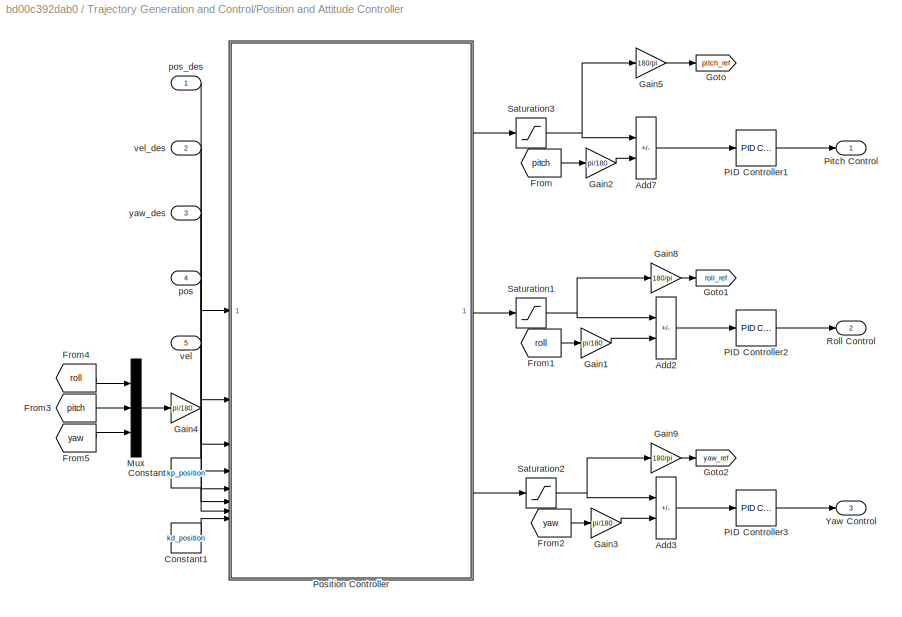
BLOCK [SubSystem] Trajectory Generation and Control/Position and Attitude Controller
BLOCK [Sum] Trajectory Generation and Control/Position and Attitude Controller/Add2
  IconShape = rectangular
  Inputs = +-
BLOCK [Sum] Trajectory Generation and Control/Position and Attitude Controller/Add3
  IconShape = rectangular
  Inputs = +-
BLOCK [Sum] Trajectory Generation and Control/Position and Attitude Controller/Add7
  IconShape = rectangular
  Inputs = +-
BLOCK [Constant] Trajectory Generation and Control/Position and Attitude Controller/Constant
  Value = kp_position
BLOCK [Constant] Trajectory Generation and Control/Position and Attitude Controller/Constant1
  Value = kd_position
BLOCK [From] Trajectory Generation and Control/Position and Attitude Controller/From
  GotoTag = pitch
  TagVisibility = global
BLOCK [From] Trajectory Generation and Control/Position and Attitude Controller/From1
  GotoTag = roll
  TagVisibility = global
BLOCK [From] Trajectory Generation and Control/Position and Attitude Controller/From2
  GotoTag = yaw
  TagVisibility = global
BLOCK [From] Trajectory Generation and Control/Position and Attitude Controller/From3
  GotoTag = pitch
  TagVisibility = global
BLOCK [From] Trajectory Generation and Control/Position and Attitude Controller/From4
  GotoTag = roll
  TagVisibility = global
BLOCK [From] Trajectory Generation and Control/Position and Attitude Controller/From5
  GotoTag = yaw
  TagVisibility = global
BLOCK [Gain] Trajectory Generation and Control/Position and Attitude Controller/Gain1
  Gain = pi/180
BLOCK [Gain] Trajectory Generation and Control/Position and Attitude Controller/Gain2
  Gain = pi/180
BLOCK [Gain] Trajectory Generation and Control/Position and Attitude Controller/Gain3
  Gain = pi/180
BLOCK [Gain] Trajectory Generation and Control/Position and Attitude Controller/Gain4
  Gain = pi/180
BLOCK [Gain] Trajectory Generation and Control/Position and Attitude Controller/Gain5
  Gain = 180/pi
BLOCK [Gain] Trajectory Generation and Control/Position and Attitude Controller/Gain8
  Gain = 180/pi
BLOCK [Gain] Trajectory Generation and Control/Position and Attitude Controller/Gain9
  Gain = 180/pi
BLOCK [Goto] Trajectory Generation and Control/Position and Attitude Controller/Goto
  GotoTag = pitch_ref
  TagVisibility = global
BLOCK [Goto] Trajectory Generation and Control/Position and Attitude Controller/Goto1
  GotoTag = roll_ref
  TagVisibility = global
BLOCK [Goto] Trajectory Generation and Control/Position and Attitude Controller/Goto2
  GotoTag = yaw_ref
  TagVisibility = global
BLOCK [Mux] Trajectory Generation and Control/Position and Attitude Controller/Mux
  DisplayOption = bar
  Inputs = 3
BLOCK [Reference] Trajectory Generation and Control/Position and Attitude Controller/PID Controller1  REF=slpidlib/PID Controller
  SourceBlock = slpidlib/PID Controller
  SourceType = PID 1dof
BLOCK [Reference] Trajectory Generation and Control/Position and Attitude Controller/PID Controller2  REF=slpidlib/PID Controller
  SourceBlock = slpidlib/PID Controller
  SourceType = PID 1dof
BLOCK [Reference] Trajectory Generation and Control/Position and Attitude Controller/PID Controller3  REF=slpidlib/PID Controller
  SourceBlock = slpidlib/PID Controller
  SourceType = PID 1dof
BLOCK [Outport] Trajectory Generation and Control/Position and Attitude Controller/Pitch Control
BLOCK [SubSystem] Trajectory Generation and Control/Position and Attitude Controller/Position Controller
  ErrorFcn = Stateflow.Translate.translate
  PermitHierarchicalResolution = ExplicitOnly
  SFBlockType = MATLAB Function
  TreatAsAtomicUnit = on
BLOCK [Demux] Trajectory Generation and Control/Position and Attitude Controller/Position Controller/ Demux 
  Outputs = 1
BLOCK [S-Function] Trajectory Generation and Control/Position and Attitude Controller/Position Controller/ SFunction 
  EnableBusSupport = off
  FunctionName = sf_sfun
  PortCounts = [8 4]
  SFcnIsStateOwnerBlock = off
  SFunctionDeploymentMode = off
  Tag = Stateflow S-Function 1
BLOCK [Terminator] Trajectory Generation and Control/Position and Attitude Controller/Position Controller/ Terminator 
BLOCK [Inport] Trajectory Generation and Control/Position and Attitude Controller/Position Controller/attitude
  Port = 6
BLOCK [Inport] Trajectory Generation and Control/Position and Attitude Controller/Position Controller/des_pos
BLOCK [Inport] Trajectory Generation and Control/Position and Attitude Controller/Position Controller/des_vel
  Port = 2
BLOCK [Inport] Trajectory Generation and Control/Position and Attitude Controller/Position Controller/des_yaw
  Port = 3
BLOCK [Inport] Trajectory Generation and Control/Position and Attitude Controller/Position Controller/kd_position
  Port = 8
BLOCK [Inport] Trajectory Generation and Control/Position and Attitude Controller/Position Controller/kp_position
  Port = 7
BLOCK [Outport] Trajectory Generation and Control/Position and Attitude Controller/Position Controller/pitch_des
BLOCK [Inport] Trajectory Generation and Control/Position and Attitude Controller/Position Controller/pos
  Port = 4
BLOCK [Outport] Trajectory Generation and Control/Position and Attitude Controller/Position Controller/roll_des
  Port = 2
BLOCK [Inport] Trajectory Generation and Control/Position and Attitude Controller/Position Controller/vel
  Port = 5
BLOCK [Outport] Trajectory Generation and Control/Position and Attitude Controller/Position Controller/yaw_des
  Port = 3
BLOCK [Outport] Trajectory Generation and Control/Position and Attitude Controller/Roll Control
  Port = 2
BLOCK [Saturate] Trajectory Generation and Control/Position and Attitude Controller/Saturation1
  LowerLimit = -pi/3
  UpperLimit = pi/3
BLOCK [Saturate] Trajectory Generation and Control/Position and Attitude Controller/Saturation2
  LowerLimit = -pi/3
  UpperLimit = pi/3
BLOCK [Saturate] Trajectory Generation and Control/Position and Attitude Controller/Saturation3
  LowerLimit = -pi/3
  UpperLimit = pi/3
BLOCK [Outport] Trajectory Generation and Control/Position and Attitude Controller/Yaw Control
  Port = 3
BLOCK [Inport] Trajectory Generation and Control/Position and Attitude Controller/pos
  Port = 4
BLOCK [Inport] Trajectory Generation and Control/Position and Attitude Controller/pos_des
BLOCK [Inport] Trajectory Generation and Control/Position and Attitude Controller/vel
  Port = 5
BLOCK [Inport] Trajectory Generation and Control/Position and Attitude Controller/vel_des
  Port = 2
BLOCK [Inport] Trajectory Generation and Control/Position and Attitude Controller/yaw_des
  Port = 3
BLOCK [Constant] Trajectory Generation and Control/Time Spot for the Trajectory
  Value = timespot
BLOCK [SubSystem] Trajectory Generation and Control/Trajectory Generator
  ErrorFcn = Stateflow.Translate.translate
  PermitHierarchicalResolution = ExplicitOnly
  SFBlockType = MATLAB Function
  TreatAsAtomicUnit = on
BLOCK [Demux] Trajectory Generation and Control/Trajectory Generator/ Demux 
  Outputs = 1
BLOCK [S-Function] Trajectory Generation and Control/Trajectory Generator/ SFunction 
  EnableBusSupport = off
  FunctionName = sf_sfun
  PortCounts = [5 4]
  SFcnIsStateOwnerBlock = off
  SFunctionDeploymentMode = off
  Tag = Stateflow S-Function 4
BLOCK [Terminator] Trajectory Generation and Control/Trajectory Generator/ Terminator 
BLOCK [Inport] Trajectory Generation and Control/Trajectory Generator/homePose
  Port = 2
BLOCK [Inport] Trajectory Generation and Control/Trajectory Generator/pos
  Port = 5
BLOCK [Outport] Trajectory Generation and Control/Trajectory Generator/pos_des
BLOCK [Inport] Trajectory Generation and Control/Trajectory Generator/t
BLOCK [Inport] Trajectory Generation and Control/Trajectory Generator/timespot
  Port = 3
BLOCK [Outport] Trajectory Generation and Control/Trajectory Generator/vel_des
  Port = 2
BLOCK [Inport] Trajectory Generation and Control/Trajectory Generator/waypoints
  Port = 4
BLOCK [Outport] Trajectory Generation and Control/Trajectory Generator/yaw_des
  Port = 3
BLOCK [TransferFcn] Trajectory Generation and Control/Transfer Fcn
  Denominator = [1 1]
BLOCK [Constant] Trajectory Generation and Control/Waypoints
  Value = waypoints
BLOCK [Mux] Trajectory Generation and Control/position
  DisplayOption = bar
  Inputs = 3
  NameLocation = top
BLOCK [PMIOPort] Trajectory Generation and Control/quadcopterPos_X
  Side = Left
BLOCK [PMIOPort] Trajectory Generation and Control/quadcopterPos_Y
  Port = 2
  Side = Left
BLOCK [PMIOPort] Trajectory Generation and Control/quadcopterPos_Z
  Port = 3
  Side = Left
BLOCK [PMIOPort] Trajectory Generation and Control/quadcopterVel_X
  Port = 4
  Side = Left
BLOCK [PMIOPort] Trajectory Generation and Control/quadcopterVel_Y
  Port = 5
  Side = Left
BLOCK [PMIOPort] Trajectory Generation and Control/quadcopterVel_Z
  Port = 6
  Side = Left
BLOCK [Mux] Trajectory Generation and Control/velocity
  DisplayOption = bar
  Inputs = 3
BLOCK [Reference] Trajectory Generation and Control/x  REF=nesl_utility/PS-Simulink
Converter
  SourceBlock = nesl_utility/PS-Simulink\nConverter
  SourceType = PS-Simulink\nConverter
BLOCK [Reference] Trajectory Generation and Control/y  REF=nesl_utility/PS-Simulink
Converter
  SourceBlock = nesl_utility/PS-Simulink\nConverter
  SourceType = PS-Simulink\nConverter
BLOCK [Reference] Trajectory Generation and Control/z  REF=nesl_utility/PS-Simulink
Converter
  SourceBlock = nesl_utility/PS-Simulink\nConverter
  SourceType = PS-Simulink\nConverter
BLOCK [Reference] Transform Sensor1  REF=sm_lib/Frames and
Transforms/Transform
Sensor
  SourceBlock = sm_lib/Frames and\nTransforms/Transform\nSensor
  SourceType = Transform\nSensor
BLOCK [Reference] World Frame  REF=sm_lib/Frames and
Transforms/World Frame
  SourceBlock = sm_lib/Frames and\nTransforms/World Frame
  SourceType = World Frame
ANNOTATION (root): Package Delivery Quadcopter
ANNOTATION (root): 1. Explore simulation results using Simscape Results Explorer 2. Learn more about this example 3. Learn more about multibody modeling 4. Learn more about the Spatial Contact Force Block
ANNOTATION (root): <copyright redacted>
LINE Package Delivery Quadcopter/Constant1:1 -> Package Delivery Quadcopter/Package Release Trigger:2
LINE Package Delivery Quadcopter/Constant3:1 -> Package Delivery Quadcopter/Package Release Trigger:3
LINE Package Delivery Quadcopter/Constant:1 -> Package Delivery Quadcopter/Package Release Trigger:1
LINE Package Delivery Quadcopter/Desired rpm Motor 1 :1 -> Package Delivery Quadcopter/Motor Propeller 1:1
LINE Package Delivery Quadcopter/Desired rpm Motor 2:1 -> Package Delivery Quadcopter/Motor Propeller 2:1
LINE Package Delivery Quadcopter/Desired rpm Motor 3:1 -> Package Delivery Quadcopter/Motor Propeller 3 :1
LINE Package Delivery Quadcopter/Desired rpm Motor 4:1 -> Package Delivery Quadcopter/Motor Propeller 4:1
LINE Package Delivery Quadcopter/Memory:1 -> Package Delivery Quadcopter/Simulink-PS Converter:1
LINE Package Delivery Quadcopter/Motor Propeller 1/Abs:1 -> Package Delivery Quadcopter/Motor Propeller 1/Gain2:1
LINE Package Delivery Quadcopter/Motor Propeller 1/Desired rpm Motor 1:1 -> Package Delivery Quadcopter/Motor Propeller 1/Saturation:1
LINE Package Delivery Quadcopter/Motor Propeller 1/Gain1:1 -> Package Delivery Quadcopter/Motor Propeller 1/Goto:1
LINE Package Delivery Quadcopter/Motor Propeller 1/Gain2:1 -> Package Delivery Quadcopter/Motor Propeller 1/Simulink-PS Converter1:1
NET Package Delivery Quadcopter/Motor Propeller 1/PS-Simulink Converter1:1 -> Package Delivery Quadcopter/Motor Propeller 1/Abs:1, Package Delivery Quadcopter/Motor Propeller 1/Gain1:1
LINE Package Delivery Quadcopter/Motor Propeller 1/PS-Simulink Converter2:1 -> Package Delivery Quadcopter/Motor Propeller 1/Thrust Coefficient Calculator:1
LINE Package Delivery Quadcopter/Motor Propeller 1/Saturation:1 -> Package Delivery Quadcopter/Motor Propeller 1/Simulink-PS Converter:1
LINE Package Delivery Quadcopter/Motor Propeller 1/Thrust Coefficient Calculator/Add:1 -> Package Delivery Quadcopter/Motor Propeller 1/Thrust Coefficient Calculator/Simulink-PS Converter:1
LINE Package Delivery Quadcopter/Motor Propeller 1/Thrust Coefficient Calculator/Constant:1 -> Package Delivery Quadcopter/Motor Propeller 1/Thrust Coefficient Calculator/Add:3
LINE Package Delivery Quadcopter/Motor Propeller 1/Thrust Coefficient Calculator/Gain1:1 -> Package Delivery Quadcopter/Motor Propeller 1/Thrust Coefficient Calculator/Add:2
LINE Package Delivery Quadcopter/Motor Propeller 1/Thrust Coefficient Calculator/Gain4:1 -> Package Delivery Quadcopter/Motor Propeller 1/Thrust Coefficient Calculator/Add:1
LINE Package Delivery Quadcopter/Motor Propeller 1/Thrust Coefficient Calculator/Math Function:1 -> Package Delivery Quadcopter/Motor Propeller 1/Thrust Coefficient Calculator/Gain4:1
NET Package Delivery Quadcopter/Motor Propeller 1/Thrust Coefficient Calculator/m//s:1 -> Package Delivery Quadcopter/Motor Propeller 1/Thrust Coefficient Calculator/Gain1:1, Package Delivery Quadcopter/Motor Propeller 1/Thrust Coefficient Calculator/Math Function:1
LINE Package Delivery Quadcopter/Motor Propeller 2/Abs:1 -> Package Delivery Quadcopter/Motor Propeller 2/Gain2:1
LINE Package Delivery Quadcopter/Motor Propeller 2/Desired rpm Motor 2:1 -> Package Delivery Quadcopter/Motor Propeller 2/Saturation:1
LINE Package Delivery Quadcopter/Motor Propeller 2/Gain1:1 -> Package Delivery Quadcopter/Motor Propeller 2/Goto:1
LINE Package Delivery Quadcopter/Motor Propeller 2/Gain2:1 -> Package Delivery Quadcopter/Motor Propeller 2/Simulink-PS Converter1:1
NET Package Delivery Quadcopter/Motor Propeller 2/PS-Simulink Converter1:1 -> Package Delivery Quadcopter/Motor Propeller 2/Abs:1, Package Delivery Quadcopter/Motor Propeller 2/Gain1:1
LINE Package Delivery Quadcopter/Motor Propeller 2/PS-Simulink Converter2:1 -> Package Delivery Quadcopter/Motor Propeller 2/Thrust Coefficient Calculator:1
LINE Package Delivery Quadcopter/Motor Propeller 2/Saturation:1 -> Package Delivery Quadcopter/Motor Propeller 2/Simulink-PS Converter:1
LINE Package Delivery Quadcopter/Motor Propeller 2/Thrust Coefficient Calculator/Add:1 -> Package Delivery Quadcopter/Motor Propeller 2/Thrust Coefficient Calculator/Simulink-PS Converter:1
LINE Package Delivery Quadcopter/Motor Propeller 2/Thrust Coefficient Calculator/Constant:1 -> Package Delivery Quadcopter/Motor Propeller 2/Thrust Coefficient Calculator/Add:3
LINE Package Delivery Quadcopter/Motor Propeller 2/Thrust Coefficient Calculator/Gain1:1 -> Package Delivery Quadcopter/Motor Propeller 2/Thrust Coefficient Calculator/Add:2
LINE Package Delivery Quadcopter/Motor Propeller 2/Thrust Coefficient Calculator/Gain4:1 -> Package Delivery Quadcopter/Motor Propeller 2/Thrust Coefficient Calculator/Add:1
LINE Package Delivery Quadcopter/Motor Propeller 2/Thrust Coefficient Calculator/Math Function:1 -> Package Delivery Quadcopter/Motor Propeller 2/Thrust Coefficient Calculator/Gain4:1
NET Package Delivery Quadcopter/Motor Propeller 2/Thrust Coefficient Calculator/m//s:1 -> Package Delivery Quadcopter/Motor Propeller 2/Thrust Coefficient Calculator/Gain1:1, Package Delivery Quadcopter/Motor Propeller 2/Thrust Coefficient Calculator/Math Function:1
LINE Package Delivery Quadcopter/Motor Propeller 3 /Abs:1 -> Package Delivery Quadcopter/Motor Propeller 3 /Gain2:1
LINE Package Delivery Quadcopter/Motor Propeller 3 /Desired rpm Motor 3:1 -> Package Delivery Quadcopter/Motor Propeller 3 /Saturation:1
LINE Package Delivery Quadcopter/Motor Propeller 3 /Gain1:1 -> Package Delivery Quadcopter/Motor Propeller 3 /Goto1:1
LINE Package Delivery Quadcopter/Motor Propeller 3 /Gain2:1 -> Package Delivery Quadcopter/Motor Propeller 3 /Simulink-PS Converter1:1
LINE Package Delivery Quadcopter/Motor Propeller 3 /PS-Simulink Converter1:1 -> Package Delivery Quadcopter/Motor Propeller 3 /Thrust Coefficient Calculator:1
NET Package Delivery Quadcopter/Motor Propeller 3 /PS-Simulink Converter2:1 -> Package Delivery Quadcopter/Motor Propeller 3 /Abs:1, Package Delivery Quadcopter/Motor Propeller 3 /Gain1:1
LINE Package Delivery Quadcopter/Motor Propeller 3 /Saturation:1 -> Package Delivery Quadcopter/Motor Propeller 3 /Simulink-PS Converter:1
LINE Package Delivery Quadcopter/Motor Propeller 3 /Thrust Coefficient Calculator/Add:1 -> Package Delivery Quadcopter/Motor Propeller 3 /Thrust Coefficient Calculator/Simulink-PS Converter:1
LINE Package Delivery Quadcopter/Motor Propeller 3 /Thrust Coefficient Calculator/Constant:1 -> Package Delivery Quadcopter/Motor Propeller 3 /Thrust Coefficient Calculator/Add:3
LINE Package Delivery Quadcopter/Motor Propeller 3 /Thrust Coefficient Calculator/Gain1:1 -> Package Delivery Quadcopter/Motor Propeller 3 /Thrust Coefficient Calculator/Add:2
LINE Package Delivery Quadcopter/Motor Propeller 3 /Thrust Coefficient Calculator/Gain4:1 -> Package Delivery Quadcopter/Motor Propeller 3 /Thrust Coefficient Calculator/Add:1
LINE Package Delivery Quadcopter/Motor Propeller 3 /Thrust Coefficient Calculator/Math Function:1 -> Package Delivery Quadcopter/Motor Propeller 3 /Thrust Coefficient Calculator/Gain4:1
NET Package Delivery Quadcopter/Motor Propeller 3 /Thrust Coefficient Calculator/m//s:1 -> Package Delivery Quadcopter/Motor Propeller 3 /Thrust Coefficient Calculator/Gain1:1, Package Delivery Quadcopter/Motor Propeller 3 /Thrust Coefficient Calculator/Math Function:1
LINE Package Delivery Quadcopter/Motor Propeller 4/Abs:1 -> Package Delivery Quadcopter/Motor Propeller 4/Gain2:1
LINE Package Delivery Quadcopter/Motor Propeller 4/Desired rpm Motor 4:1 -> Package Delivery Quadcopter/Motor Propeller 4/Saturation:1
LINE Package Delivery Quadcopter/Motor Propeller 4/Gain1:1 -> Package Delivery Quadcopter/Motor Propeller 4/Goto1:1
LINE Package Delivery Quadcopter/Motor Propeller 4/Gain2:1 -> Package Delivery Quadcopter/Motor Propeller 4/Simulink-PS Converter1:1
LINE Package Delivery Quadcopter/Motor Propeller 4/PS-Simulink Converter1:1 -> Package Delivery Quadcopter/Motor Propeller 4/Thrust Coefficient Calculator:1
NET Package Delivery Quadcopter/Motor Propeller 4/PS-Simulink Converter2:1 -> Package Delivery Quadcopter/Motor Propeller 4/Abs:1, Package Delivery Quadcopter/Motor Propeller 4/Gain1:1
LINE Package Delivery Quadcopter/Motor Propeller 4/Saturation:1 -> Package Delivery Quadcopter/Motor Propeller 4/Simulink-PS Converter:1
LINE Package Delivery Quadcopter/Motor Propeller 4/Thrust Coefficient Calculator/Add:1 -> Package Delivery Quadcopter/Motor Propeller 4/Thrust Coefficient Calculator/Simulink-PS Converter:1
LINE Package Delivery Quadcopter/Motor Propeller 4/Thrust Coefficient Calculator/Constant:1 -> Package Delivery Quadcopter/Motor Propeller 4/Thrust Coefficient Calculator/Add:3
LINE Package Delivery Quadcopter/Motor Propeller 4/Thrust Coefficient Calculator/Gain1:1 -> Package Delivery Quadcopter/Motor Propeller 4/Thrust Coefficient Calculator/Add:2
LINE Package Delivery Quadcopter/Motor Propeller 4/Thrust Coefficient Calculator/Gain4:1 -> Package Delivery Quadcopter/Motor Propeller 4/Thrust Coefficient Calculator/Add:1
LINE Package Delivery Quadcopter/Motor Propeller 4/Thrust Coefficient Calculator/Math Function:1 -> Package Delivery Quadcopter/Motor Propeller 4/Thrust Coefficient Calculator/Gain4:1
NET Package Delivery Quadcopter/Motor Propeller 4/Thrust Coefficient Calculator/m//s:1 -> Package Delivery Quadcopter/Motor Propeller 4/Thrust Coefficient Calculator/Gain1:1, Package Delivery Quadcopter/Motor Propeller 4/Thrust Coefficient Calculator/Math Function:1
LINE Package Delivery Quadcopter/PS-Simulink Converter1:1 -> Package Delivery Quadcopter/Goto1:1
LINE Package Delivery Quadcopter/PS-Simulink Converter2:1 -> Package Delivery Quadcopter/Goto2:1
LINE Package Delivery Quadcopter/PS-Simulink Converter3:1 -> Package Delivery Quadcopter/Goto3:1
NET Package Delivery Quadcopter/PS-Simulink Converter4:1 -> Package Delivery Quadcopter/Goto4:1, Package Delivery Quadcopter/Package Release Trigger:4
NET Package Delivery Quadcopter/PS-Simulink Converter5:1 -> Package Delivery Quadcopter/Goto5:1, Package Delivery Quadcopter/Package Release Trigger:5
NET Package Delivery Quadcopter/PS-Simulink Converter6:1 -> Package Delivery Quadcopter/Goto6:1, Package Delivery Quadcopter/Package Release Trigger:6
LINE Package Delivery Quadcopter/PS-Simulink Converter:1 -> Package Delivery Quadcopter/Goto:1
LINE Package Delivery Quadcopter/Package Release Trigger:1 -> Package Delivery Quadcopter/Memory:1
LINE Package Delivery Quadcopter/Quadcopter Chassis/Gain1:1 -> Package Delivery Quadcopter/Quadcopter Chassis/Goto:1
LINE Package Delivery Quadcopter/Quadcopter Chassis/Gain2:1 -> Package Delivery Quadcopter/Quadcopter Chassis/Goto2:1
LINE Package Delivery Quadcopter/Quadcopter Chassis/Gain:1 -> Package Delivery Quadcopter/Quadcopter Chassis/Goto1:1
LINE Package Delivery Quadcopter/Quadcopter Chassis/PS-Simulink Converter1:1 -> Package Delivery Quadcopter/Quadcopter Chassis/Quaternion to Euler Angles Conversion:1
LINE Package Delivery Quadcopter/Quadcopter Chassis/Quaternion to Euler Angles Conversion:1 -> Package Delivery Quadcopter/Quadcopter Chassis/Gain:1
LINE Package Delivery Quadcopter/Quadcopter Chassis/Quaternion to Euler Angles Conversion:2 -> Package Delivery Quadcopter/Quadcopter Chassis/Gain1:1
LINE Package Delivery Quadcopter/Quadcopter Chassis/Quaternion to Euler Angles Conversion:3 -> Package Delivery Quadcopter/Quadcopter Chassis/Gain2:1
LINE Results /Constant1:1 -> Results /Sum2:1
LINE Results /Constant2:1 -> Results /Sum:1
LINE Results /Constant:1 -> Results /Sum1:1
LINE Results /From10:1 -> Results /Mux2:2
LINE Results /From19:1 -> Results /Mux3:1
LINE Results /From1:1 -> Results /Propeller Thrust:2
LINE Results /From20:1 -> Results /Mux4:1
LINE Results /From21:1 -> Results /Mux5:1
LINE Results /From22:1 -> Results /Mux3:2
LINE Results /From23:1 -> Results /Mux4:2
LINE Results /From24:1 -> Results /Mux5:2
LINE Results /From25:1 -> Results /Mux1:2
LINE Results /From26:1 -> Results /Mux1:1
LINE Results /From27:1 -> Results /Mux:2
LINE Results /From28:1 -> Results /Mux:1
LINE Results /From29:1 -> Results /Sum1:2
LINE Results /From2:1 -> Results /Propeller Thrust:3
LINE Results /From30:1 -> Results /Sum:2
LINE Results /From31:1 -> Results /Sum2:2
LINE Results /From3:1 -> Results /Propeller Thrust:4
LINE Results /From4:1 -> Results /Propeller Speed:1
LINE Results /From5:1 -> Results /Propeller Speed:2
LINE Results /From6:1 -> Results /Propeller Speed:3
LINE Results /From7:1 -> Results /Propeller Speed:4
LINE Results /From9:1 -> Results /Mux2:1
LINE Results /From:1 -> Results /Propeller Thrust:1
LINE Results /Mux1:1 -> Results /Position of the Quadcopter:2
LINE Results /Mux2:1 -> Results /Position of the Quadcopter:3
LINE Results /Mux3:1 -> Results /Attitude of the Quadcopter:1
LINE Results /Mux4:1 -> Results /Attitude of the Quadcopter:2
LINE Results /Mux5:1 -> Results /Attitude of the Quadcopter:3
LINE Results /Mux:1 -> Results /Position of the Quadcopter:1
LINE Results /Sum1:1 -> Results /Package Location from the Drop off Point:1
LINE Results /Sum2:1 -> Results /Package Location from the Drop off Point:3
LINE Results /Sum:1 -> Results /Package Location from the Drop off Point:2
LINE Trajectory Generation and Control/Altitude Controller/Add:1 -> Trajectory Generation and Control/Altitude Controller/PID Controller2:1
LINE Trajectory Generation and Control/Altitude Controller/Constant:1 -> Trajectory Generation and Control/Altitude Controller/Sum:2
LINE Trajectory Generation and Control/Altitude Controller/Gain3:1 -> Trajectory Generation and Control/Altitude Controller/Sum:1
LINE Trajectory Generation and Control/Altitude Controller/PID Controller2:1 -> Trajectory Generation and Control/Altitude Controller/Gain3:1
LINE Trajectory Generation and Control/Altitude Controller/Sum:1 -> Trajectory Generation and Control/Altitude Controller/Throttle:1
LINE Trajectory Generation and Control/Altitude Controller/altitude_actual:1 -> Trajectory Generation and Control/Altitude Controller/Add:2
LINE Trajectory Generation and Control/Altitude Controller/altitude_desired:1 -> Trajectory Generation and Control/Altitude Controller/Add:1
LINE Trajectory Generation and Control/Altitude Controller:1 -> Trajectory Generation and Control/Motor Mixer:4
LINE Trajectory Generation and Control/Clock1:1 -> Trajectory Generation and Control/Trajectory Generator:1
LINE Trajectory Generation and Control/Demux1:1 -> Trajectory Generation and Control/Goto1:1
LINE Trajectory Generation and Control/Demux1:2 -> Trajectory Generation and Control/Goto6:1
NET Trajectory Generation and Control/Demux1:3 -> Trajectory Generation and Control/Altitude Controller:2, Trajectory Generation and Control/Goto4:1
LINE Trajectory Generation and Control/Demux:1 -> Trajectory Generation and Control/Goto2:1
LINE Trajectory Generation and Control/Demux:2 -> Trajectory Generation and Control/Goto3:1
NET Trajectory Generation and Control/Demux:3 -> Trajectory Generation and Control/Goto5:1, Trajectory Generation and Control/Transfer Fcn:1
LINE Trajectory Generation and Control/Home Position:1 -> Trajectory Generation and Control/Trajectory Generator:2
LINE Trajectory Generation and Control/Motor Mixer/Add4:1 -> Trajectory Generation and Control/Motor Mixer/motor1:1
LINE Trajectory Generation and Control/Motor Mixer/Add5:1 -> Trajectory Generation and Control/Motor Mixer/motor2:1
LINE Trajectory Generation and Control/Motor Mixer/Add6:1 -> Trajectory Generation and Control/Motor Mixer/motor4:1
LINE Trajectory Generation and Control/Motor Mixer/Add7:1 -> Trajectory Generation and Control/Motor Mixer/motor3:1
NET Trajectory Generation and Control/Motor Mixer/Pitch Control:1 -> Trajectory Generation and Control/Motor Mixer/Add4:2, Trajectory Generation and Control/Motor Mixer/Add5:2, Trajectory Generation and Control/Motor Mixer/Add6:2, Trajectory Generation and Control/Motor Mixer/Add7:2
NET Trajectory Generation and Control/Motor Mixer/Roll Control:1 -> Trajectory Generation and Control/Motor Mixer/Add4:1, Trajectory Generation and Control/Motor Mixer/Add5:1, Trajectory Generation and Control/Motor Mixer/Add6:1, Trajectory Generation and Control/Motor Mixer/Add7:1
NET Trajectory Generation and Control/Motor Mixer/Throttle Control:1 -> Trajectory Generation and Control/Motor Mixer/Add4:4, Trajectory Generation and Control/Motor Mixer/Add5:4, Trajectory Generation and Control/Motor Mixer/Add6:4, Trajectory Generation and Control/Motor Mixer/Add7:4
NET Trajectory Generation and Control/Motor Mixer/Yaw Control:1 -> Trajectory Generation and Control/Motor Mixer/Add4:3, Trajectory Generation and Control/Motor Mixer/Add5:3, Trajectory Generation and Control/Motor Mixer/Add6:3, Trajectory Generation and Control/Motor Mixer/Add7:3
LINE Trajectory Generation and Control/Motor Mixer:1 -> Trajectory Generation and Control/Desired rpm Motor 2:1
LINE Trajectory Generation and Control/Motor Mixer:2 -> Trajectory Generation and Control/Desired rpm Motor 1:1
LINE Trajectory Generation and Control/Motor Mixer:3 -> Trajectory Generation and Control/Desired rpm Motor 4:1
LINE Trajectory Generation and Control/Motor Mixer:4 -> Trajectory Generation and Control/Desired rpm Motor 3:1
LINE Trajectory Generation and Control/PS-Simulink Converter1:1 -> Trajectory Generation and Control/velocity:2
LINE Trajectory Generation and Control/PS-Simulink Converter2:1 -> Trajectory Generation and Control/velocity:3
LINE Trajectory Generation and Control/PS-Simulink Converter:1 -> Trajectory Generation and Control/velocity:1
LINE Trajectory Generation and Control/Position and Attitude Controller/Add2:1 -> Trajectory Generation and Control/Position and Attitude Controller/PID Controller2:1
LINE Trajectory Generation and Control/Position and Attitude Controller/Add3:1 -> Trajectory Generation and Control/Position and Attitude Controller/PID Controller3:1
LINE Trajectory Generation and Control/Position and Attitude Controller/Add7:1 -> Trajectory Generation and Control/Position and Attitude Controller/PID Controller1:1
LINE Trajectory Generation and Control/Position and Attitude Controller/Constant1:1 -> Trajectory Generation and Control/Position and Attitude Controller/Position Controller:8
LINE Trajectory Generation and Control/Position and Attitude Controller/Constant:1 -> Trajectory Generation and Control/Position and Attitude Controller/Position Controller:7
LINE Trajectory Generation and Control/Position and Attitude Controller/From1:1 -> Trajectory Generation and Control/Position and Attitude Controller/Gain1:1
LINE Trajectory Generation and Control/Position and Attitude Controller/From2:1 -> Trajectory Generation and Control/Position and Attitude Controller/Gain3:1
LINE Trajectory Generation and Control/Position and Attitude Controller/From3:1 -> Trajectory Generation and Control/Position and Attitude Controller/Mux:2
LINE Trajectory Generation and Control/Position and Attitude Controller/From4:1 -> Trajectory Generation and Control/Position and Attitude Controller/Mux:1
LINE Trajectory Generation and Control/Position and Attitude Controller/From5:1 -> Trajectory Generation and Control/Position and Attitude Controller/Mux:3
LINE Trajectory Generation and Control/Position and Attitude Controller/From:1 -> Trajectory Generation and Control/Position and Attitude Controller/Gain2:1
LINE Trajectory Generation and Control/Position and Attitude Controller/Gain1:1 -> Trajectory Generation and Control/Position and Attitude Controller/Add2:2
LINE Trajectory Generation and Control/Position and Attitude Controller/Gain2:1 -> Trajectory Generation and Control/Position and Attitude Controller/Add7:2
LINE Trajectory Generation and Control/Position and Attitude Controller/Gain3:1 -> Trajectory Generation and Control/Position and Attitude Controller/Add3:2
LINE Trajectory Generation and Control/Position and Attitude Controller/Gain4:1 -> Trajectory Generation and Control/Position and Attitude Controller/Position Controller:6
LINE Trajectory Generation and Control/Position and Attitude Controller/Gain5:1 -> Trajectory Generation and Control/Position and Attitude Controller/Goto:1
LINE Trajectory Generation and Control/Position and Attitude Controller/Gain8:1 -> Trajectory Generation and Control/Position and Attitude Controller/Goto1:1
LINE Trajectory Generation and Control/Position and Attitude Controller/Gain9:1 -> Trajectory Generation and Control/Position and Attitude Controller/Goto2:1
LINE Trajectory Generation and Control/Position and Attitude Controller/Mux:1 -> Trajectory Generation and Control/Position and Attitude Controller/Gain4:1
LINE Trajectory Generation and Control/Position and Attitude Controller/PID Controller1:1 -> Trajectory Generation and Control/Position and Attitude Controller/Pitch Control:1
LINE Trajectory Generation and Control/Position and Attitude Controller/PID Controller2:1 -> Trajectory Generation and Control/Position and Attitude Controller/Roll Control:1
LINE Trajectory Generation and Control/Position and Attitude Controller/PID Controller3:1 -> Trajectory Generation and Control/Position and Attitude Controller/Yaw Control:1
LINE Trajectory Generation and Control/Position and Attitude Controller/Position Controller:1 -> Trajectory Generation and Control/Position and Attitude Controller/Saturation3:1
LINE Trajectory Generation and Control/Position and Attitude Controller/Position Controller:2 -> Trajectory Generation and Control/Position and Attitude Controller/Saturation1:1
LINE Trajectory Generation and Control/Position and Attitude Controller/Position Controller:3 -> Trajectory Generation and Control/Position and Attitude Controller/Saturation2:1
NET Trajectory Generation and Control/Position and Attitude Controller/Saturation1:1 -> Trajectory Generation and Control/Position and Attitude Controller/Add2:1, Trajectory Generation and Control/Position and Attitude Controller/Gain8:1
NET Trajectory Generation and Control/Position and Attitude Controller/Saturation2:1 -> Trajectory Generation and Control/Position and Attitude Controller/Add3:1, Trajectory Generation and Control/Position and Attitude Controller/Gain9:1
NET Trajectory Generation and Control/Position and Attitude Controller/Saturation3:1 -> Trajectory Generation and Control/Position and Attitude Controller/Add7:1, Trajectory Generation and Control/Position and Attitude Controller/Gain5:1
LINE Trajectory Generation and Control/Position and Attitude Controller/pos:1 -> Trajectory Generation and Control/Position and Attitude Controller/Position Controller:4
LINE Trajectory Generation and Control/Position and Attitude Controller/pos_des:1 -> Trajectory Generation and Control/Position and Attitude Controller/Position Controller:1
LINE Trajectory Generation and Control/Position and Attitude Controller/vel:1 -> Trajectory Generation and Control/Position and Attitude Controller/Position Controller:5
LINE Trajectory Generation and Control/Position and Attitude Controller/vel_des:1 -> Trajectory Generation and Control/Position and Attitude Controller/Position Controller:2
LINE Trajectory Generation and Control/Position and Attitude Controller/yaw_des:1 -> Trajectory Generation and Control/Position and Attitude Controller/Position Controller:3
LINE Trajectory Generation and Control/Position and Attitude Controller:1 -> Trajectory Generation and Control/Motor Mixer:1
LINE Trajectory Generation and Control/Position and Attitude Controller:2 -> Trajectory Generation and Control/Motor Mixer:2
LINE Trajectory Generation and Control/Position and Attitude Controller:3 -> Trajectory Generation and Control/Motor Mixer:3
LINE Trajectory Generation and Control/Time Spot for the Trajectory:1 -> Trajectory Generation and Control/Trajectory Generator:3
NET Trajectory Generation and Control/Trajectory Generator:1 -> Trajectory Generation and Control/Demux:1, Trajectory Generation and Control/Position and Attitude Controller:1
LINE Trajectory Generation and Control/Trajectory Generator:2 -> Trajectory Generation and Control/Position and Attitude Controller:2
LINE Trajectory Generation and Control/Trajectory Generator:3 -> Trajectory Generation and Control/Position and Attitude Controller:3
LINE Trajectory Generation and Control/Transfer Fcn:1 -> Trajectory Generation and Control/Altitude Controller:1
LINE Trajectory Generation and Control/Waypoints:1 -> Trajectory Generation and Control/Trajectory Generator:4
NET Trajectory Generation and Control/position:1 -> Trajectory Generation and Control/Demux1:1, Trajectory Generation and Control/Position and Attitude Controller:4, Trajectory Generation and Control/Trajectory Generator:5
LINE Trajectory Generation and Control/velocity:1 -> Trajectory Generation and Control/Position and Attitude Controller:5
LINE Trajectory Generation and Control/x:1 -> Trajectory Generation and Control/position:1
LINE Trajectory Generation and Control/y:1 -> Trajectory Generation and Control/position:2
LINE Trajectory Generation and Control/z:1 -> Trajectory Generation and Control/position:3
LINE Trajectory Generation and Control:1 -> Package Delivery Quadcopter:1
LINE Trajectory Generation and Control:2 -> Package Delivery Quadcopter:2
LINE Trajectory Generation and Control:3 -> Package Delivery Quadcopter:3
LINE Trajectory Generation and Control:4 -> Package Delivery Quadcopter:4
PNET net1: 6-DOF:LConn1 -- Gravity:RConn1 -- Rigid Transform:LConn1 -- Solver Configuration:RConn1 -- Transform Sensor1:LConn1 -- World Frame:RConn1
PNET net2: 6-DOF:RConn1 -- Package Delivery Quadcopter:RConn1 -- Transform Sensor1:RConn1
PNET net3: Ground/Ground:LConn1 -- Ground/Rigid Transform12:LConn1 -- Ground/Rigid Transform1:LConn1
PLINE Ground/Ground:LConn2 -- Ground/Package:RConn1
PLINE Ground/Ground:RConn1 -- Ground/World Frame:RConn1
PNET net4: Ground/Launchpad:RConn1 -- Ground/Revolved Solid:RConn1 -- Ground/Rigid Transform1:RConn1
PLINE Ground/Rigid Transform12:RConn1 -- Ground/Target Marker:RConn1
PLINE Ground:LConn1 -- Package Delivery Quadcopter:RConn2
PLINE Ground:RConn1 -- Rigid Transform:RConn1
PLINE Package Delivery Quadcopter/Ground:RConn1 -- Package Delivery Quadcopter/Package:LConn2
PLINE Package Delivery Quadcopter/Motor Propeller 1/Arm1:RConn1 -- Package Delivery Quadcopter/Motor Propeller 1/Transform1:LConn1
PLINE Package Delivery Quadcopter/Motor Propeller 1/PS Gain1:LConn1 -- Package Delivery Quadcopter/Motor Propeller 1/Simulink-PS Converter:RConn1
PLINE Package Delivery Quadcopter/Motor Propeller 1/PS Gain1:RConn1 -- Package Delivery Quadcopter/Motor Propeller 1/PS Integrator:LConn1
PLINE Package Delivery Quadcopter/Motor Propeller 1/PS Integrator:RConn1 -- Package Delivery Quadcopter/Motor Propeller 1/Revolute Joint:LConn2
PLINE Package Delivery Quadcopter/Motor Propeller 1/PS-Simulink Converter1:LConn1 -- Package Delivery Quadcopter/Motor Propeller 1/Transform Sensor:RConn2
PLINE Package Delivery Quadcopter/Motor Propeller 1/PS-Simulink Converter2:LConn1 -- Package Delivery Quadcopter/Motor Propeller 1/Transform Sensor1:RConn2
PNET net5: Package Delivery Quadcopter/Motor Propeller 1/Propeller 1:RConn1 -- Package Delivery Quadcopter/Motor Propeller 1/Rigid Transform6:RConn1 -- Package Delivery Quadcopter/Motor Propeller 1/Thrust:RConn1
PLINE Package Delivery Quadcopter/Motor Propeller 1/Propeller Thrust Calculator/Air Density:RConn1 -- Package Delivery Quadcopter/Motor Propeller 1/Propeller Thrust Calculator/PS Product1:LConn2
PLINE Package Delivery Quadcopter/Motor Propeller 1/Propeller Thrust Calculator/Ct:RConn1 -- Package Delivery Quadcopter/Motor Propeller 1/Propeller Thrust Calculator/PS Product:LConn1
PLINE Package Delivery Quadcopter/Motor Propeller 1/Propeller Thrust Calculator/PS Gain:LConn1 -- Package Delivery Quadcopter/Motor Propeller 1/Propeller Thrust Calculator/Propeller Speed:RConn1
PLINE Package Delivery Quadcopter/Motor Propeller 1/Propeller Thrust Calculator/PS Gain:RConn1 -- Package Delivery Quadcopter/Motor Propeller 1/Propeller Thrust Calculator/PS Math Function1:LConn1
PLINE Package Delivery Quadcopter/Motor Propeller 1/Propeller Thrust Calculator/PS Math Function1:RConn1 -- Package Delivery Quadcopter/Motor Propeller 1/Propeller Thrust Calculator/PS Product1:LConn1
PLINE Package Delivery Quadcopter/Motor Propeller 1/Propeller Thrust Calculator/PS Math Function:LConn1 -- Package Delivery Quadcopter/Motor Propeller 1/Propeller Thrust Calculator/Propeller Diameter:RConn1
PLINE Package Delivery Quadcopter/Motor Propeller 1/Propeller Thrust Calculator/PS Math Function:RConn1 -- Package Delivery Quadcopter/Motor Propeller 1/Propeller Thrust Calculator/PS Product:LConn2
PLINE Package Delivery Quadcopter/Motor Propeller 1/Propeller Thrust Calculator/PS Product1:RConn1 -- Package Delivery Quadcopter/Motor Propeller 1/Propeller Thrust Calculator/PS Product2:LConn2
PLINE Package Delivery Quadcopter/Motor Propeller 1/Propeller Thrust Calculator/PS Product2:LConn1 -- Package Delivery Quadcopter/Motor Propeller 1/Propeller Thrust Calculator/PS Product:RConn1
PLINE Package Delivery Quadcopter/Motor Propeller 1/Propeller Thrust Calculator/PS Product2:RConn1 -- Package Delivery Quadcopter/Motor Propeller 1/Propeller Thrust Calculator/Thrust:RConn1
PLINE Package Delivery Quadcopter/Motor Propeller 1/Propeller Thrust Calculator:LConn1 -- Package Delivery Quadcopter/Motor Propeller 1/Thrust Coefficient Calculator:RConn1
PLINE Package Delivery Quadcopter/Motor Propeller 1/Propeller Thrust Calculator:LConn2 -- Package Delivery Quadcopter/Motor Propeller 1/Simulink-PS Converter1:RConn1
PNET net6: Package Delivery Quadcopter/Motor Propeller 1/Propeller Thrust Calculator:RConn1 -- Package Delivery Quadcopter/Motor Propeller 1/Thrust1 :RConn1 -- Package Delivery Quadcopter/Motor Propeller 1/Thrust:LConn1
PNET net7: Package Delivery Quadcopter/Motor Propeller 1/Revolute Joint:LConn1 -- Package Delivery Quadcopter/Motor Propeller 1/Transform Sensor1:LConn1 -- Package Delivery Quadcopter/Motor Propeller 1/Transform Sensor:LConn1 -- Package Delivery Quadcopter/Motor Propeller 1/motor base 1:RConn1
PNET net8: Package Delivery Quadcopter/Motor Propeller 1/Revolute Joint:RConn1 -- Package Delivery Quadcopter/Motor Propeller 1/Transform Sensor1:RConn1 -- Package Delivery Quadcopter/Motor Propeller 1/Transform Sensor:RConn1 -- Package Delivery Quadcopter/Motor Propeller 1/Transform4:LConn1
PLINE Package Delivery Quadcopter/Motor Propeller 1/Rigid Transform6:LConn1 -- Package Delivery Quadcopter/Motor Propeller 1/motor 1:RConn1
PLINE Package Delivery Quadcopter/Motor Propeller 1/Thrust Coefficient Calculator/Ct:RConn1 -- Package Delivery Quadcopter/Motor Propeller 1/Thrust Coefficient Calculator/Simulink-PS Converter:RConn1
PLINE Package Delivery Quadcopter/Motor Propeller 1/Transform1:RConn1 -- Package Delivery Quadcopter/Motor Propeller 1/motor base 1:LConn1
PLINE Package Delivery Quadcopter/Motor Propeller 1/Transform2:LConn1 -- Package Delivery Quadcopter/Motor Propeller 1/motor 1:LConn2
PLINE Package Delivery Quadcopter/Motor Propeller 1/Transform2:RConn1 -- Package Delivery Quadcopter/Motor Propeller 1/motor cap 1:RConn1
PLINE Package Delivery Quadcopter/Motor Propeller 1/Transform4:RConn1 -- Package Delivery Quadcopter/Motor Propeller 1/motor 1:LConn1
PLINE Package Delivery Quadcopter/Motor Propeller 1:LConn1 -- Package Delivery Quadcopter/Quadcopter Chassis:RConn1
PLINE Package Delivery Quadcopter/Motor Propeller 1:LConn2 -- Package Delivery Quadcopter/PS-Simulink Converter2:LConn1
PLINE Package Delivery Quadcopter/Motor Propeller 2/Arm2:RConn1 -- Package Delivery Quadcopter/Motor Propeller 2/Transform1:LConn1
PNET net9: Package Delivery Quadcopter/Motor Propeller 2/External Force and Torque:LConn1 -- Package Delivery Quadcopter/Motor Propeller 2/Propeller Thrust Calculator:RConn1 -- Package Delivery Quadcopter/Motor Propeller 2/Thrust2:RConn1
PNET net10: Package Delivery Quadcopter/Motor Propeller 2/External Force and Torque:RConn1 -- Package Delivery Quadcopter/Motor Propeller 2/Propeller 2:RConn1 -- Package Delivery Quadcopter/Motor Propeller 2/Rigid Transform6:RConn1
PLINE Package Delivery Quadcopter/Motor Propeller 2/PS Gain1:LConn1 -- Package Delivery Quadcopter/Motor Propeller 2/Simulink-PS Converter:RConn1
PLINE Package Delivery Quadcopter/Motor Propeller 2/PS Gain1:RConn1 -- Package Delivery Quadcopter/Motor Propeller 2/PS Integrator:LConn1
PLINE Package Delivery Quadcopter/Motor Propeller 2/PS Integrator:RConn1 -- Package Delivery Quadcopter/Motor Propeller 2/Revolute Joint:LConn2
PLINE Package Delivery Quadcopter/Motor Propeller 2/PS-Simulink Converter1:LConn1 -- Package Delivery Quadcopter/Motor Propeller 2/Transform Sensor:RConn2
PLINE Package Delivery Quadcopter/Motor Propeller 2/PS-Simulink Converter2:LConn1 -- Package Delivery Quadcopter/Motor Propeller 2/Transform Sensor1:RConn2
PLINE Package Delivery Quadcopter/Motor Propeller 2/Propeller Thrust Calculator/Air Density:RConn1 -- Package Delivery Quadcopter/Motor Propeller 2/Propeller Thrust Calculator/PS Product1:LConn2
PLINE Package Delivery Quadcopter/Motor Propeller 2/Propeller Thrust Calculator/Ct:RConn1 -- Package Delivery Quadcopter/Motor Propeller 2/Propeller Thrust Calculator/PS Product:LConn1
PLINE Package Delivery Quadcopter/Motor Propeller 2/Propeller Thrust Calculator/PS Gain:LConn1 -- Package Delivery Quadcopter/Motor Propeller 2/Propeller Thrust Calculator/Propeller Speed:RConn1
PLINE Package Delivery Quadcopter/Motor Propeller 2/Propeller Thrust Calculator/PS Gain:RConn1 -- Package Delivery Quadcopter/Motor Propeller 2/Propeller Thrust Calculator/PS Math Function1:LConn1
PLINE Package Delivery Quadcopter/Motor Propeller 2/Propeller Thrust Calculator/PS Math Function1:RConn1 -- Package Delivery Quadcopter/Motor Propeller 2/Propeller Thrust Calculator/PS Product1:LConn1
PLINE Package Delivery Quadcopter/Motor Propeller 2/Propeller Thrust Calculator/PS Math Function:LConn1 -- Package Delivery Quadcopter/Motor Propeller 2/Propeller Thrust Calculator/Propeller Diameter:RConn1
PLINE Package Delivery Quadcopter/Motor Propeller 2/Propeller Thrust Calculator/PS Math Function:RConn1 -- Package Delivery Quadcopter/Motor Propeller 2/Propeller Thrust Calculator/PS Product:LConn2
PLINE Package Delivery Quadcopter/Motor Propeller 2/Propeller Thrust Calculator/PS Product1:RConn1 -- Package Delivery Quadcopter/Motor Propeller 2/Propeller Thrust Calculator/PS Product2:LConn2
PLINE Package Delivery Quadcopter/Motor Propeller 2/Propeller Thrust Calculator/PS Product2:LConn1 -- Package Delivery Quadcopter/Motor Propeller 2/Propeller Thrust Calculator/PS Product:RConn1
PLINE Package Delivery Quadcopter/Motor Propeller 2/Propeller Thrust Calculator/PS Product2:RConn1 -- Package Delivery Quadcopter/Motor Propeller 2/Propeller Thrust Calculator/Thrust:RConn1
PLINE Package Delivery Quadcopter/Motor Propeller 2/Propeller Thrust Calculator:LConn1 -- Package Delivery Quadcopter/Motor Propeller 2/Thrust Coefficient Calculator:RConn1
PLINE Package Delivery Quadcopter/Motor Propeller 2/Propeller Thrust Calculator:LConn2 -- Package Delivery Quadcopter/Motor Propeller 2/Simulink-PS Converter1:RConn1
PNET net11: Package Delivery Quadcopter/Motor Propeller 2/Revolute Joint:LConn1 -- Package Delivery Quadcopter/Motor Propeller 2/Transform Sensor1:LConn1 -- Package Delivery Quadcopter/Motor Propeller 2/Transform Sensor:LConn1 -- Package Delivery Quadcopter/Motor Propeller 2/motor base 2:RConn1
PNET net12: Package Delivery Quadcopter/Motor Propeller 2/Revolute Joint:RConn1 -- Package Delivery Quadcopter/Motor Propeller 2/Transform Sensor1:RConn1 -- Package Delivery Quadcopter/Motor Propeller 2/Transform Sensor:RConn1 -- Package Delivery Quadcopter/Motor Propeller 2/Transform4:LConn1
PLINE Package Delivery Quadcopter/Motor Propeller 2/Rigid Transform6:LConn1 -- Package Delivery Quadcopter/Motor Propeller 2/motor 2:RConn1
PLINE Package Delivery Quadcopter/Motor Propeller 2/Thrust Coefficient Calculator/Ct:RConn1 -- Package Delivery Quadcopter/Motor Propeller 2/Thrust Coefficient Calculator/Simulink-PS Converter:RConn1
PLINE Package Delivery Quadcopter/Motor Propeller 2/Transform1:RConn1 -- Package Delivery Quadcopter/Motor Propeller 2/motor base 2:LConn1
PLINE Package Delivery Quadcopter/Motor Propeller 2/Transform2:LConn1 -- Package Delivery Quadcopter/Motor Propeller 2/motor 2:LConn2
PLINE Package Delivery Quadcopter/Motor Propeller 2/Transform2:RConn1 -- Package Delivery Quadcopter/Motor Propeller 2/motor cap 2:RConn1
PLINE Package Delivery Quadcopter/Motor Propeller 2/Transform4:RConn1 -- Package Delivery Quadcopter/Motor Propeller 2/motor 2:LConn1
PLINE Package Delivery Quadcopter/Motor Propeller 2:LConn1 -- Package Delivery Quadcopter/Quadcopter Chassis:LConn1
PLINE Package Delivery Quadcopter/Motor Propeller 2:LConn2 -- Package Delivery Quadcopter/PS-Simulink Converter:LConn1
PLINE Package Delivery Quadcopter/Motor Propeller 3 /Arm3:RConn1 -- Package Delivery Quadcopter/Motor Propeller 3 /Transform1:LConn1
PLINE Package Delivery Quadcopter/Motor Propeller 3 /PS Gain1:LConn1 -- Package Delivery Quadcopter/Motor Propeller 3 /Simulink-PS Converter:RConn1
PLINE Package Delivery Quadcopter/Motor Propeller 3 /PS Gain1:RConn1 -- Package Delivery Quadcopter/Motor Propeller 3 /PS Integrator:LConn1
PLINE Package Delivery Quadcopter/Motor Propeller 3 /PS Integrator:RConn1 -- Package Delivery Quadcopter/Motor Propeller 3 /Revolute Joint:LConn2
PLINE Package Delivery Quadcopter/Motor Propeller 3 /PS-Simulink Converter1:LConn1 -- Package Delivery Quadcopter/Motor Propeller 3 /Transform Sensor1:RConn2
PLINE Package Delivery Quadcopter/Motor Propeller 3 /PS-Simulink Converter2:LConn1 -- Package Delivery Quadcopter/Motor Propeller 3 /Transform Sensor:RConn2
PNET net13: Package Delivery Quadcopter/Motor Propeller 3 /Propeller 3:RConn1 -- Package Delivery Quadcopter/Motor Propeller 3 /Rigid Transform6:RConn1 -- Package Delivery Quadcopter/Motor Propeller 3 /Thrust:RConn1
PLINE Package Delivery Quadcopter/Motor Propeller 3 /Propeller Thrust Calculator/Air Density:RConn1 -- Package Delivery Quadcopter/Motor Propeller 3 /Propeller Thrust Calculator/PS Product1:LConn2
PLINE Package Delivery Quadcopter/Motor Propeller 3 /Propeller Thrust Calculator/Ct:RConn1 -- Package Delivery Quadcopter/Motor Propeller 3 /Propeller Thrust Calculator/PS Product:LConn1
PLINE Package Delivery Quadcopter/Motor Propeller 3 /Propeller Thrust Calculator/PS Gain:LConn1 -- Package Delivery Quadcopter/Motor Propeller 3 /Propeller Thrust Calculator/Propeller Speed:RConn1
PLINE Package Delivery Quadcopter/Motor Propeller 3 /Propeller Thrust Calculator/PS Gain:RConn1 -- Package Delivery Quadcopter/Motor Propeller 3 /Propeller Thrust Calculator/PS Math Function1:LConn1
PLINE Package Delivery Quadcopter/Motor Propeller 3 /Propeller Thrust Calculator/PS Math Function1:RConn1 -- Package Delivery Quadcopter/Motor Propeller 3 /Propeller Thrust Calculator/PS Product1:LConn1
PLINE Package Delivery Quadcopter/Motor Propeller 3 /Propeller Thrust Calculator/PS Math Function:LConn1 -- Package Delivery Quadcopter/Motor Propeller 3 /Propeller Thrust Calculator/Propeller Diameter:RConn1
PLINE Package Delivery Quadcopter/Motor Propeller 3 /Propeller Thrust Calculator/PS Math Function:RConn1 -- Package Delivery Quadcopter/Motor Propeller 3 /Propeller Thrust Calculator/PS Product:LConn2
PLINE Package Delivery Quadcopter/Motor Propeller 3 /Propeller Thrust Calculator/PS Product1:RConn1 -- Package Delivery Quadcopter/Motor Propeller 3 /Propeller Thrust Calculator/PS Product2:LConn2
PLINE Package Delivery Quadcopter/Motor Propeller 3 /Propeller Thrust Calculator/PS Product2:LConn1 -- Package Delivery Quadcopter/Motor Propeller 3 /Propeller Thrust Calculator/PS Product:RConn1
PLINE Package Delivery Quadcopter/Motor Propeller 3 /Propeller Thrust Calculator/PS Product2:RConn1 -- Package Delivery Quadcopter/Motor Propeller 3 /Propeller Thrust Calculator/Thrust:RConn1
PLINE Package Delivery Quadcopter/Motor Propeller 3 /Propeller Thrust Calculator:LConn1 -- Package Delivery Quadcopter/Motor Propeller 3 /Thrust Coefficient Calculator:RConn1
PLINE Package Delivery Quadcopter/Motor Propeller 3 /Propeller Thrust Calculator:LConn2 -- Package Delivery Quadcopter/Motor Propeller 3 /Simulink-PS Converter1:RConn1
PNET net14: Package Delivery Quadcopter/Motor Propeller 3 /Propeller Thrust Calculator:RConn1 -- Package Delivery Quadcopter/Motor Propeller 3 /Thrust3:RConn1 -- Package Delivery Quadcopter/Motor Propeller 3 /Thrust:LConn1
PNET net15: Package Delivery Quadcopter/Motor Propeller 3 /Revolute Joint:LConn1 -- Package Delivery Quadcopter/Motor Propeller 3 /Transform Sensor1:LConn1 -- Package Delivery Quadcopter/Motor Propeller 3 /Transform Sensor:LConn1 -- Package Delivery Quadcopter/Motor Propeller 3 /motor base 3:RConn1
PNET net16: Package Delivery Quadcopter/Motor Propeller 3 /Revolute Joint:RConn1 -- Package Delivery Quadcopter/Motor Propeller 3 /Transform Sensor1:RConn1 -- Package Delivery Quadcopter/Motor Propeller 3 /Transform Sensor:RConn1 -- Package Delivery Quadcopter/Motor Propeller 3 /Transform4:LConn1
PLINE Package Delivery Quadcopter/Motor Propeller 3 /Rigid Transform6:LConn1 -- Package Delivery Quadcopter/Motor Propeller 3 /motor 3:RConn1
PLINE Package Delivery Quadcopter/Motor Propeller 3 /Thrust Coefficient Calculator/Ct:RConn1 -- Package Delivery Quadcopter/Motor Propeller 3 /Thrust Coefficient Calculator/Simulink-PS Converter:RConn1
PLINE Package Delivery Quadcopter/Motor Propeller 3 /Transform1:RConn1 -- Package Delivery Quadcopter/Motor Propeller 3 /motor base 3:LConn1
PLINE Package Delivery Quadcopter/Motor Propeller 3 /Transform3:LConn1 -- Package Delivery Quadcopter/Motor Propeller 3 /motor 3:LConn2
PLINE Package Delivery Quadcopter/Motor Propeller 3 /Transform3:RConn1 -- Package Delivery Quadcopter/Motor Propeller 3 /motor cap 3:RConn1
PLINE Package Delivery Quadcopter/Motor Propeller 3 /Transform4:RConn1 -- Package Delivery Quadcopter/Motor Propeller 3 /motor 3:LConn1
PLINE Package Delivery Quadcopter/Motor Propeller 3 :LConn1 -- Package Delivery Quadcopter/Quadcopter Chassis:RConn3
PLINE Package Delivery Quadcopter/Motor Propeller 3 :LConn2 -- Package Delivery Quadcopter/PS-Simulink Converter3:LConn1
PLINE Package Delivery Quadcopter/Motor Propeller 4/Arm4:RConn1 -- Package Delivery Quadcopter/Motor Propeller 4/Transform3:LConn1
PLINE Package Delivery Quadcopter/Motor Propeller 4/PS Gain1:LConn1 -- Package Delivery Quadcopter/Motor Propeller 4/Simulink-PS Converter:RConn1
PLINE Package Delivery Quadcopter/Motor Propeller 4/PS Gain1:RConn1 -- Package Delivery Quadcopter/Motor Propeller 4/PS Integrator:LConn1
PLINE Package Delivery Quadcopter/Motor Propeller 4/PS Integrator:RConn1 -- Package Delivery Quadcopter/Motor Propeller 4/Revolute Joint:LConn2
PLINE Package Delivery Quadcopter/Motor Propeller 4/PS-Simulink Converter1:LConn1 -- Package Delivery Quadcopter/Motor Propeller 4/Transform Sensor1:RConn2
PLINE Package Delivery Quadcopter/Motor Propeller 4/PS-Simulink Converter2:LConn1 -- Package Delivery Quadcopter/Motor Propeller 4/Transform Sensor:RConn2
PNET net17: Package Delivery Quadcopter/Motor Propeller 4/Propeller 4 :RConn1 -- Package Delivery Quadcopter/Motor Propeller 4/Rigid Transform6:RConn1 -- Package Delivery Quadcopter/Motor Propeller 4/Thrust:RConn1
PLINE Package Delivery Quadcopter/Motor Propeller 4/Propeller Thrust Calculator/Air Density:RConn1 -- Package Delivery Quadcopter/Motor Propeller 4/Propeller Thrust Calculator/PS Product1:LConn2
PLINE Package Delivery Quadcopter/Motor Propeller 4/Propeller Thrust Calculator/Ct:RConn1 -- Package Delivery Quadcopter/Motor Propeller 4/Propeller Thrust Calculator/PS Product:LConn1
PLINE Package Delivery Quadcopter/Motor Propeller 4/Propeller Thrust Calculator/PS Gain:LConn1 -- Package Delivery Quadcopter/Motor Propeller 4/Propeller Thrust Calculator/Propeller Speed:RConn1
PLINE Package Delivery Quadcopter/Motor Propeller 4/Propeller Thrust Calculator/PS Gain:RConn1 -- Package Delivery Quadcopter/Motor Propeller 4/Propeller Thrust Calculator/PS Math Function1:LConn1
PLINE Package Delivery Quadcopter/Motor Propeller 4/Propeller Thrust Calculator/PS Math Function1:RConn1 -- Package Delivery Quadcopter/Motor Propeller 4/Propeller Thrust Calculator/PS Product1:LConn1
PLINE Package Delivery Quadcopter/Motor Propeller 4/Propeller Thrust Calculator/PS Math Function:LConn1 -- Package Delivery Quadcopter/Motor Propeller 4/Propeller Thrust Calculator/Propeller Diameter:RConn1
PLINE Package Delivery Quadcopter/Motor Propeller 4/Propeller Thrust Calculator/PS Math Function:RConn1 -- Package Delivery Quadcopter/Motor Propeller 4/Propeller Thrust Calculator/PS Product:LConn2
PLINE Package Delivery Quadcopter/Motor Propeller 4/Propeller Thrust Calculator/PS Product1:RConn1 -- Package Delivery Quadcopter/Motor Propeller 4/Propeller Thrust Calculator/PS Product2:LConn2
PLINE Package Delivery Quadcopter/Motor Propeller 4/Propeller Thrust Calculator/PS Product2:LConn1 -- Package Delivery Quadcopter/Motor Propeller 4/Propeller Thrust Calculator/PS Product:RConn1
PLINE Package Delivery Quadcopter/Motor Propeller 4/Propeller Thrust Calculator/PS Product2:RConn1 -- Package Delivery Quadcopter/Motor Propeller 4/Propeller Thrust Calculator/Thrust:RConn1
PLINE Package Delivery Quadcopter/Motor Propeller 4/Propeller Thrust Calculator:LConn1 -- Package Delivery Quadcopter/Motor Propeller 4/Thrust Coefficient Calculator:RConn1
PLINE Package Delivery Quadcopter/Motor Propeller 4/Propeller Thrust Calculator:LConn2 -- Package Delivery Quadcopter/Motor Propeller 4/Simulink-PS Converter1:RConn1
PNET net18: Package Delivery Quadcopter/Motor Propeller 4/Propeller Thrust Calculator:RConn1 -- Package Delivery Quadcopter/Motor Propeller 4/Thrust4:RConn1 -- Package Delivery Quadcopter/Motor Propeller 4/Thrust:LConn1
PNET net19: Package Delivery Quadcopter/Motor Propeller 4/Revolute Joint:LConn1 -- Package Delivery Quadcopter/Motor Propeller 4/Transform Sensor1:LConn1 -- Package Delivery Quadcopter/Motor Propeller 4/Transform Sensor:LConn1 -- Package Delivery Quadcopter/Motor Propeller 4/motor base 4:RConn1
PNET net20: Package Delivery Quadcopter/Motor Propeller 4/Revolute Joint:RConn1 -- Package Delivery Quadcopter/Motor Propeller 4/Transform Sensor1:RConn1 -- Package Delivery Quadcopter/Motor Propeller 4/Transform Sensor:RConn1 -- Package Delivery Quadcopter/Motor Propeller 4/Transform2:LConn1
PLINE Package Delivery Quadcopter/Motor Propeller 4/Rigid Transform6:LConn1 -- Package Delivery Quadcopter/Motor Propeller 4/motor 4:RConn1
PLINE Package Delivery Quadcopter/Motor Propeller 4/Thrust Coefficient Calculator/Ct:RConn1 -- Package Delivery Quadcopter/Motor Propeller 4/Thrust Coefficient Calculator/Simulink-PS Converter:RConn1
PLINE Package Delivery Quadcopter/Motor Propeller 4/Transform2:RConn1 -- Package Delivery Quadcopter/Motor Propeller 4/motor 4:LConn1
PLINE Package Delivery Quadcopter/Motor Propeller 4/Transform3:RConn1 -- Package Delivery Quadcopter/Motor Propeller 4/motor base 4:LConn1
PLINE Package Delivery Quadcopter/Motor Propeller 4/Transform4:LConn1 -- Package Delivery Quadcopter/Motor Propeller 4/motor 4:LConn2
PLINE Package Delivery Quadcopter/Motor Propeller 4/Transform4:RConn1 -- Package Delivery Quadcopter/Motor Propeller 4/motor cap 4:RConn1
PLINE Package Delivery Quadcopter/Motor Propeller 4:LConn1 -- Package Delivery Quadcopter/Quadcopter Chassis:LConn3
PLINE Package Delivery Quadcopter/Motor Propeller 4:LConn2 -- Package Delivery Quadcopter/PS-Simulink Converter1:LConn1
PLINE Package Delivery Quadcopter/PS-Simulink Converter4:LConn1 -- Package Delivery Quadcopter/Transform Sensor1:RConn2
PLINE Package Delivery Quadcopter/PS-Simulink Converter5:LConn1 -- Package Delivery Quadcopter/Transform Sensor1:RConn3
PLINE Package Delivery Quadcopter/PS-Simulink Converter6:LConn1 -- Package Delivery Quadcopter/Transform Sensor1:RConn4
PNET net21: Package Delivery Quadcopter/Package/Ground:RConn1 -- Package Delivery Quadcopter/Package/Subsystem1:LConn1 -- Package Delivery Quadcopter/Package/Subsystem2:LConn1 -- Package Delivery Quadcopter/Package/Subsystem3:LConn1 -- Package Delivery Quadcopter/Package/Subsystem4:LConn1 -- Package Delivery Quadcopter/Package/Subsystem5:LConn1 -- Package Delivery Quadcopter/Package/Subsystem6:LConn1 -- Package Delivery Quadcopter/Package/Subsystem7:LConn1 -- Package Delivery Quadcopter/Package/Subsystem:LConn1
PLINE Package Delivery Quadcopter/Package/Medical kit:LConn1 -- Package Delivery Quadcopter/Package/Top:RConn1
PLINE Package Delivery Quadcopter/Package/Medical kit:LConn2 -- Package Delivery Quadcopter/Package/Plus1:RConn1
PLINE Package Delivery Quadcopter/Package/Medical kit:LConn3 -- Package Delivery Quadcopter/Package/Subsystem4:RConn1
PLINE Package Delivery Quadcopter/Package/Medical kit:LConn4 -- Package Delivery Quadcopter/Package/Subsystem5:RConn1
PLINE Package Delivery Quadcopter/Package/Medical kit:LConn5 -- Package Delivery Quadcopter/Package/Subsystem6:RConn1
PLINE Package Delivery Quadcopter/Package/Medical kit:LConn6 -- Package Delivery Quadcopter/Package/Subsystem7:RConn1
PLINE Package Delivery Quadcopter/Package/Medical kit:RConn1 -- Package Delivery Quadcopter/Package/R:RConn1
PLINE Package Delivery Quadcopter/Package/Medical kit:RConn2 -- Package Delivery Quadcopter/Package/Plus:RConn1
PLINE Package Delivery Quadcopter/Package/Medical kit:RConn3 -- Package Delivery Quadcopter/Package/Subsystem:RConn1
PLINE Package Delivery Quadcopter/Package/Medical kit:RConn4 -- Package Delivery Quadcopter/Package/Subsystem1:RConn1
PLINE Package Delivery Quadcopter/Package/Medical kit:RConn5 -- Package Delivery Quadcopter/Package/Subsystem2:RConn1
PLINE Package Delivery Quadcopter/Package/Medical kit:RConn6 -- Package Delivery Quadcopter/Package/Subsystem3:RConn1
PLINE Package Delivery Quadcopter/Package/Subsystem/G:RConn1 -- Package Delivery Quadcopter/Package/Subsystem/Spatial Contact Force:RConn1
PLINE Package Delivery Quadcopter/Package/Subsystem/R:RConn1 -- Package Delivery Quadcopter/Package/Subsystem/Spherical Solid:RConn1
PLINE Package Delivery Quadcopter/Package/Subsystem/Spatial Contact Force:LConn1 -- Package Delivery Quadcopter/Package/Subsystem/Spherical Solid:LConn1
PLINE Package Delivery Quadcopter/Package/Subsystem1/G:RConn1 -- Package Delivery Quadcopter/Package/Subsystem1/Spatial Contact Force:RConn1
PLINE Package Delivery Quadcopter/Package/Subsystem1/R:RConn1 -- Package Delivery Quadcopter/Package/Subsystem1/Spherical Solid:RConn1
PLINE Package Delivery Quadcopter/Package/Subsystem1/Spatial Contact Force:LConn1 -- Package Delivery Quadcopter/Package/Subsystem1/Spherical Solid:LConn1
PLINE Package Delivery Quadcopter/Package/Subsystem2/G:RConn1 -- Package Delivery Quadcopter/Package/Subsystem2/Spatial Contact Force:RConn1
PLINE Package Delivery Quadcopter/Package/Subsystem2/R:RConn1 -- Package Delivery Quadcopter/Package/Subsystem2/Spherical Solid:RConn1
PLINE Package Delivery Quadcopter/Package/Subsystem2/Spatial Contact Force:LConn1 -- Package Delivery Quadcopter/Package/Subsystem2/Spherical Solid:LConn1
PLINE Package Delivery Quadcopter/Package/Subsystem3/G:RConn1 -- Package Delivery Quadcopter/Package/Subsystem3/Spatial Contact Force:RConn1
PLINE Package Delivery Quadcopter/Package/Subsystem3/R:RConn1 -- Package Delivery Quadcopter/Package/Subsystem3/Spherical Solid:RConn1
PLINE Package Delivery Quadcopter/Package/Subsystem3/Spatial Contact Force:LConn1 -- Package Delivery Quadcopter/Package/Subsystem3/Spherical Solid:LConn1
PLINE Package Delivery Quadcopter/Package/Subsystem4/G:RConn1 -- Package Delivery Quadcopter/Package/Subsystem4/Spatial Contact Force:RConn1
PLINE Package Delivery Quadcopter/Package/Subsystem4/R:RConn1 -- Package Delivery Quadcopter/Package/Subsystem4/Spherical Solid:RConn1
PLINE Package Delivery Quadcopter/Package/Subsystem4/Spatial Contact Force:LConn1 -- Package Delivery Quadcopter/Package/Subsystem4/Spherical Solid:LConn1
PLINE Package Delivery Quadcopter/Package/Subsystem5/G:RConn1 -- Package Delivery Quadcopter/Package/Subsystem5/Spatial Contact Force:RConn1
PLINE Package Delivery Quadcopter/Package/Subsystem5/R:RConn1 -- Package Delivery Quadcopter/Package/Subsystem5/Spherical Solid:RConn1
PLINE Package Delivery Quadcopter/Package/Subsystem5/Spatial Contact Force:LConn1 -- Package Delivery Quadcopter/Package/Subsystem5/Spherical Solid:LConn1
PLINE Package Delivery Quadcopter/Package/Subsystem6/G:RConn1 -- Package Delivery Quadcopter/Package/Subsystem6/Spatial Contact Force:RConn1
PLINE Package Delivery Quadcopter/Package/Subsystem6/R:RConn1 -- Package Delivery Quadcopter/Package/Subsystem6/Spherical Solid:RConn1
PLINE Package Delivery Quadcopter/Package/Subsystem6/Spatial Contact Force:LConn1 -- Package Delivery Quadcopter/Package/Subsystem6/Spherical Solid:LConn1
PLINE Package Delivery Quadcopter/Package/Subsystem7/G:RConn1 -- Package Delivery Quadcopter/Package/Subsystem7/Spatial Contact Force:RConn1
PLINE Package Delivery Quadcopter/Package/Subsystem7/R:RConn1 -- Package Delivery Quadcopter/Package/Subsystem7/Spherical Solid:RConn1
PLINE Package Delivery Quadcopter/Package/Subsystem7/Spatial Contact Force:LConn1 -- Package Delivery Quadcopter/Package/Subsystem7/Spherical Solid:LConn1
PLINE Package Delivery Quadcopter/Package:LConn1 -- Package Delivery Quadcopter/Weld Joint5:LConn1
PLINE Package Delivery Quadcopter/Package:RConn1 -- Package Delivery Quadcopter/Transform Sensor1:RConn1
PLINE Package Delivery Quadcopter/Quadcopter Chassis/ Arm2 :LConn1 -- Package Delivery Quadcopter/Quadcopter Chassis/Rigid Transform9:RConn1
PLINE Package Delivery Quadcopter/Quadcopter Chassis/ Arm2 :RConn1 -- Package Delivery Quadcopter/Quadcopter Chassis/motor base 2:RConn1
PLINE Package Delivery Quadcopter/Quadcopter Chassis/ Arm4:LConn1 -- Package Delivery Quadcopter/Quadcopter Chassis/Rigid Transform8:RConn1
PLINE Package Delivery Quadcopter/Quadcopter Chassis/ Arm4:RConn1 -- Package Delivery Quadcopter/Quadcopter Chassis/motor base 4:RConn1
PLINE Package Delivery Quadcopter/Quadcopter Chassis/Arm1:LConn1 -- Package Delivery Quadcopter/Quadcopter Chassis/Rigid Transform1:RConn1
PLINE Package Delivery Quadcopter/Quadcopter Chassis/Arm1:RConn1 -- Package Delivery Quadcopter/Quadcopter Chassis/motor base 1 :RConn1
PLINE Package Delivery Quadcopter/Quadcopter Chassis/Arm3:LConn1 -- Package Delivery Quadcopter/Quadcopter Chassis/Rigid Transform10:RConn1
PLINE Package Delivery Quadcopter/Quadcopter Chassis/Arm3:RConn1 -- Package Delivery Quadcopter/Quadcopter Chassis/motor base 3:RConn1
PLINE Package Delivery Quadcopter/Quadcopter Chassis/Bottom Plate:RConn1 -- Package Delivery Quadcopter/Quadcopter Chassis/bottom plate:LConn1
PLINE Package Delivery Quadcopter/Quadcopter Chassis/PS-Simulink Converter1:LConn1 -- Package Delivery Quadcopter/Quadcopter Chassis/Transform Sensor:RConn2
PLINE Package Delivery Quadcopter/Quadcopter Chassis/Rigid Transform10:LConn1 -- Package Delivery Quadcopter/Quadcopter Chassis/Rigid Transform6:RConn1
PLINE Package Delivery Quadcopter/Quadcopter Chassis/Rigid Transform1:LConn1 -- Package Delivery Quadcopter/Quadcopter Chassis/Rigid Transform4:RConn1
PNET net22: Package Delivery Quadcopter/Quadcopter Chassis/Rigid Transform2:LConn1 -- Package Delivery Quadcopter/Quadcopter Chassis/Rigid Transform3:LConn1 -- Package Delivery Quadcopter/Quadcopter Chassis/Rigid Transform4:LConn1 -- Package Delivery Quadcopter/Quadcopter Chassis/Rigid Transform5:LConn1 -- Package Delivery Quadcopter/Quadcopter Chassis/Rigid Transform6:LConn1 -- Package Delivery Quadcopter/Quadcopter Chassis/Rigid Transform7:LConn1 -- Package Delivery Quadcopter/Quadcopter Chassis/Rigid Transform:LConn1
PLINE Package Delivery Quadcopter/Quadcopter Chassis/Rigid Transform2:RConn1 -- Package Delivery Quadcopter/Quadcopter Chassis/Rigid Transform8:LConn1
PLINE Package Delivery Quadcopter/Quadcopter Chassis/Rigid Transform3:RConn1 -- Package Delivery Quadcopter/Quadcopter Chassis/Rigid Transform9:LConn1
PLINE Package Delivery Quadcopter/Quadcopter Chassis/Rigid Transform5:RConn1 -- Package Delivery Quadcopter/Quadcopter Chassis/Sensor Suite:RConn1
PLINE Package Delivery Quadcopter/Quadcopter Chassis/Rigid Transform7:RConn1 -- Package Delivery Quadcopter/Quadcopter Chassis/bottom plate:RConn1
PNET net23: Package Delivery Quadcopter/Quadcopter Chassis/Rigid Transform:RConn1 -- Package Delivery Quadcopter/Quadcopter Chassis/To World Frame:RConn1 -- Package Delivery Quadcopter/Quadcopter Chassis/top plate :RConn1
PLINE Package Delivery Quadcopter/Quadcopter Chassis/Sensor Suite:LConn1 -- Package Delivery Quadcopter/Quadcopter Chassis/Transform Sensor:RConn1
PLINE Package Delivery Quadcopter/Quadcopter Chassis/Transform Sensor:LConn1 -- Package Delivery Quadcopter/Quadcopter Chassis/World Frame:RConn1
PLINE Package Delivery Quadcopter/Quadcopter Chassis:LConn2 -- Package Delivery Quadcopter/To World Frame:RConn1
PLINE Package Delivery Quadcopter/Quadcopter Chassis:RConn2 -- Package Delivery Quadcopter/Weld Joint5:RConn1
PLINE Package Delivery Quadcopter/Simulink-PS Converter:RConn1 -- Package Delivery Quadcopter/Weld Joint5:LConn2
PLINE Package Delivery Quadcopter/Transform Sensor1:LConn1 -- Package Delivery Quadcopter/World Frame:RConn1
PLINE Trajectory Generation and Control/PS-Simulink Converter1:LConn1 -- Trajectory Generation and Control/quadcopterVel_Y:RConn1
PLINE Trajectory Generation and Control/PS-Simulink Converter2:LConn1 -- Trajectory Generation and Control/quadcopterVel_Z:RConn1
PLINE Trajectory Generation and Control/PS-Simulink Converter:LConn1 -- Trajectory Generation and Control/quadcopterVel_X:RConn1
PLINE Trajectory Generation and Control/quadcopterPos_X:RConn1 -- Trajectory Generation and Control/x:LConn1
PLINE Trajectory Generation and Control/quadcopterPos_Y:RConn1 -- Trajectory Generation and Control/y:LConn1
PLINE Trajectory Generation and Control/quadcopterPos_Z:RConn1 -- Trajectory Generation and Control/z:LConn1
PLINE Trajectory Generation and Control:LConn1 -- Transform Sensor1:RConn2
PLINE Trajectory Generation and Control:LConn2 -- Transform Sensor1:RConn3
PLINE Trajectory Generation and Control:LConn3 -- Transform Sensor1:RConn4
PLINE Trajectory Generation and Control:LConn4 -- Transform Sensor1:RConn5
PLINE Trajectory Generation and Control:LConn5 -- Transform Sensor1:RConn6
PLINE Trajectory Generation and Control:LConn6 -- Transform Sensor1:RConn7
note: NET lines group one-source signal fan-out (src -> all destinations, sorted); 1:1 wires keep LINE; PNET lines group multi-terminal physical nets as a canonical sorted terminal list (undirected conserving connections); 2-terminal nets keep the pairwise PLINE form
CHART Trajectory Generation and Control/Position and Attitude Controller/Position Controller states=1 transitions=1
  STATE_LABEL 'eML_blk_kernel()'
  STATE_LABEL 'SCRIPT:\nfunction [pitch_des,roll_des,yaw_des] = position_controller(des_pos,des_vel,des_yaw,pos,vel,attitude, kp_position, kd_position)\n% This MATLAB function computes the desired roll, pitch and yaw angles to\n% control the position of the quadcopter.\n\n% Euler Angles\nphi = attitude(1);\ntheta = attitude(2);\npsi = attitude(3);\n\n%% Obtain the desired state\n\n% Direction Cosine Matrix\nDCM = [cos(theta)...<+578ch>'
CHART Package Delivery Quadcopter/Quadcopter Chassis/Quaternion to Euler Angles Conversion states=1 transitions=1
  STATE_LABEL 'eML_blk_kernel()'
  STATE_LABEL 'SCRIPT:\nfunction [roll,pitch,yaw] = quaternion_to_euler_angles_conversion(Quaternion)\n% This MATLAB function converts the quaternions to the Euler Angles\n\nw = Quaternion(1,1);\nx = Quaternion(2,1);\ny = Quaternion(3,1);\nz = Quaternion(4,1);\n\n% roll (x-axis rotation)\nsinr_cosp = 2 * (w * x + y * z);\ncosr_cosp = 1 - 2 * (x * x + y * y);\nroll = atan2(sinr_cosp, cosr_cosp);\n\n% pitch (y-axis rotation)\nsi...<+184ch>'
CHART Trajectory Generation and Control/Trajectory Generator states=1 transitions=1
  STATE_LABEL 'eML_blk_kernel()'
  STATE_LABEL 'SCRIPT:\nfunction [pos_des,vel_des,yaw_des]  = trajectory_generator(t,homePose,timespot,waypoints, pos)\n% This MATLAB function is used to calculate the desired trajectory for the\n% quadcopter.\n\npersistent distance2waypoint waypointCounter px py pz;\npersistent t0 tf X0 Y0 Z0 Xf Yf Zf vx0 vy0 vz0 vxf vyf vzf ax0 ay0 az0 axf ayf azf;\n\n%% Calculate the desired trajectory from the home position to the f...<+3608ch>'
CHART Package Delivery Quadcopter/Package Release Trigger states=1 transitions=1
  STATE_LABEL 'eML_blk_kernel()'
  STATE_LABEL 'SCRIPT:\nfunction releaseTrigger = package_release_trigger(targetPos_X, targetPos_Y, targetPos_Z, packagePos_X, packagePos_Y, packagePos_Z)\n% This MATLAB function sends a trigger signal to disengage the weld joint\n% between the quadcopter and the package \n\npersistent releaseObj;\n\nif sqrt((packagePos_X - targetPos_X)^2 + (packagePos_Y - targetPos_Y)^2 + (packagePos_Z - targetPos_Z)^2) < 0.3  && isem...<+151ch>'
CHART  states=0 transitions=0
CHART  states=0 transitions=0
CHART  states=0 transitions=0
CHART  states=0 transitions=0
